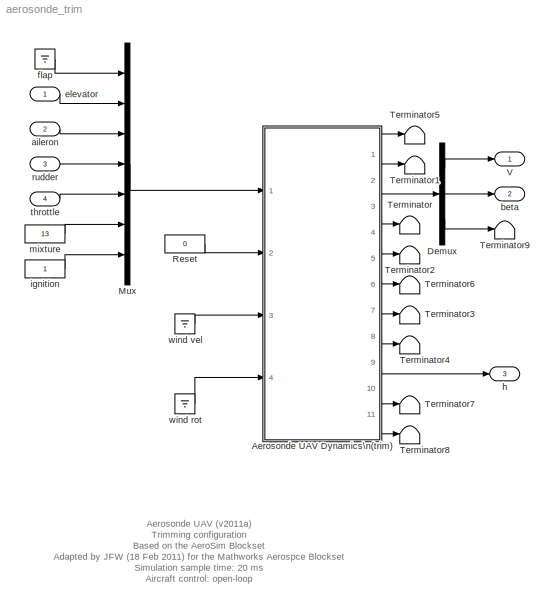
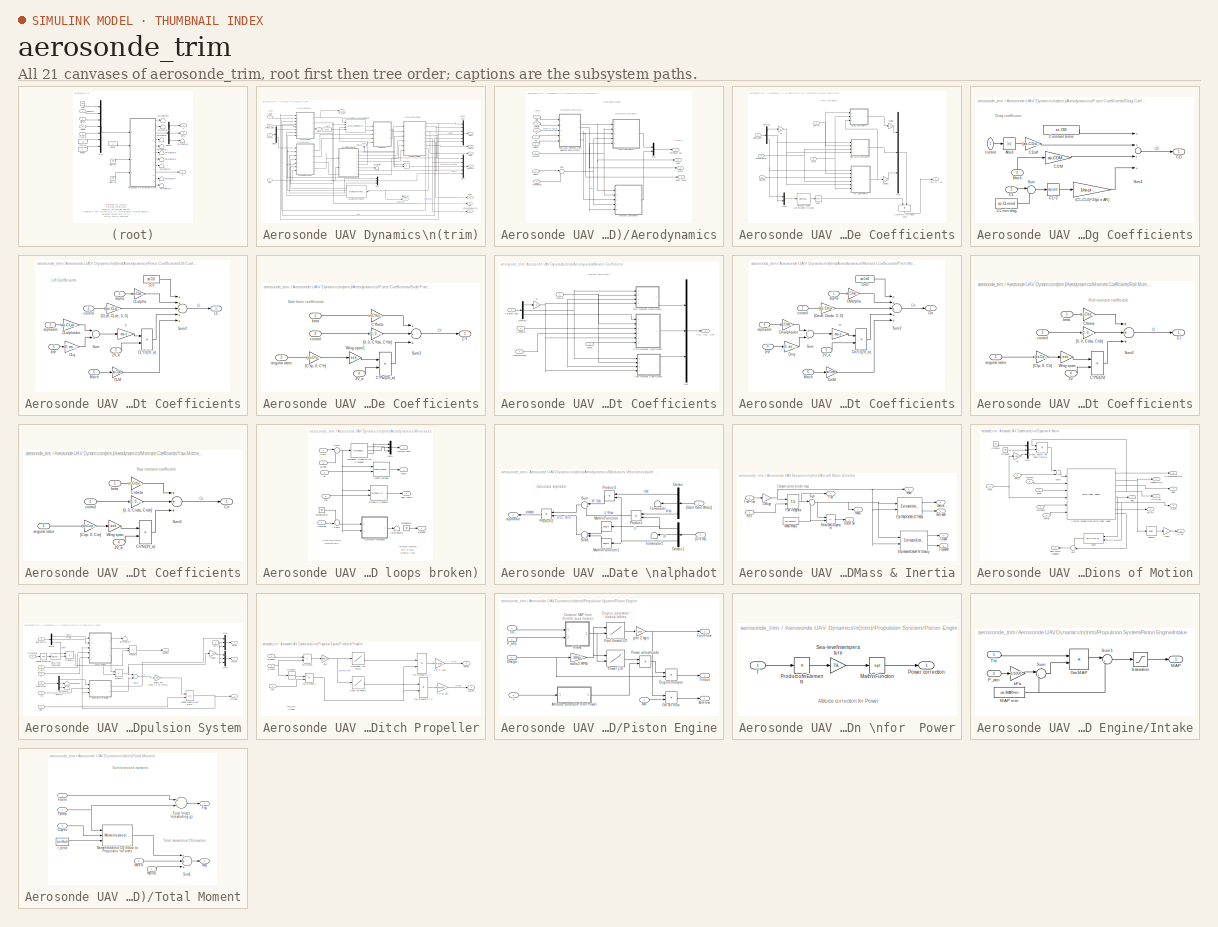
[diagram: thumbnail index - all 21 canvases of the model, root first then tree order]
MODEL aerosonde_trim
KIND model
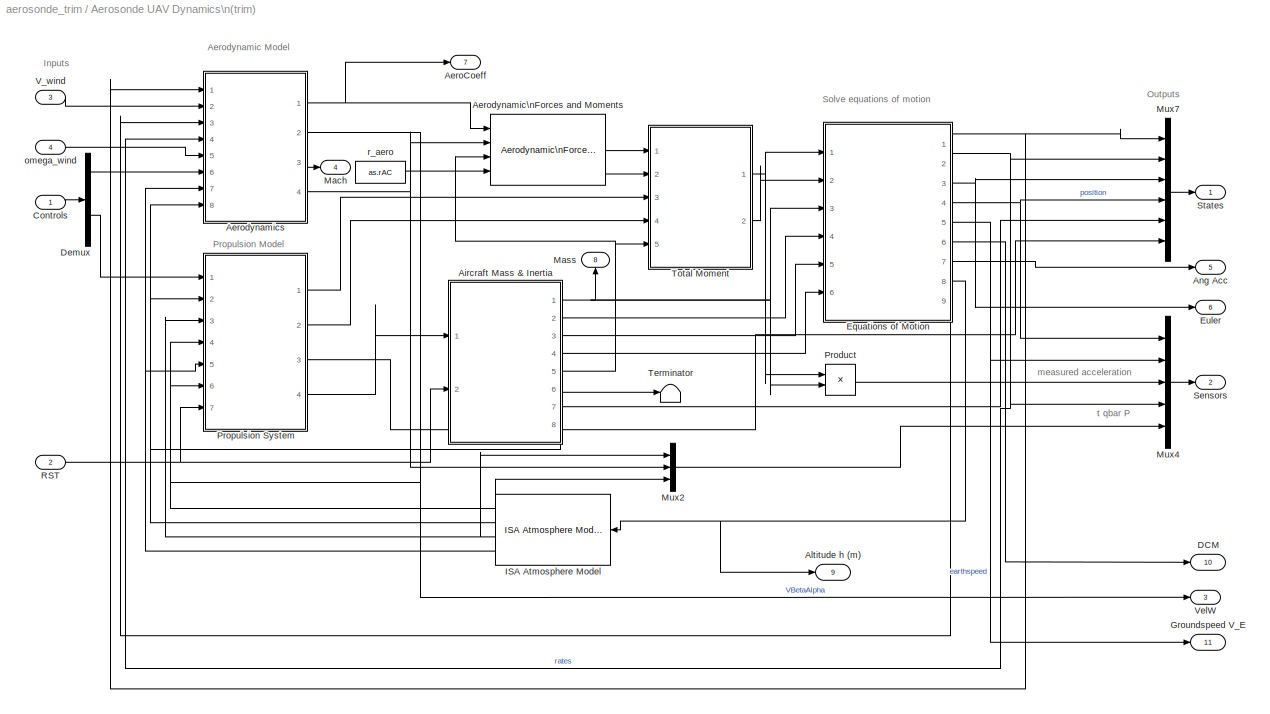
BLOCK [SubSystem] Aerosonde UAV Dynamics\n(trim)
  FunctionWithSeparateData = off
  MaskCallbackString = |||||||
  MaskDescription = Nonlinear 6-DOF Aerosonde  model with equations of motion in \nbody frame (trim).\n\nVersion 2011a (18 February 2011)\n\nNOTE: the algebraic loop has been removed and the rate set to zero\n      the wind rate has been set to zero
  MaskEnableString = on,on,on,on,on,on,on,on
  MaskHelp = The block implements the 6-DOF nonlinear Aerosonde model. It is an adaptation of the model provided in the AeroSim blockset. Velocities are computed in body frame.\n<P><B>Inputs:</B>\n<LI>Controls = the 4x1 vector of aircraft controls [elevator aileron rudder throttle]. Aerodynamic controls are in radians, throttle is from 0 to 1.</LI>\n<LI>RST = the integrator reset flag (0 or 1, all integrators ...<+1723ch>
  MaskHideContents = off
  MaskIconFrame = on
  MaskIconOpaque = on
  MaskIconRotate = none
  MaskIconUnits = autoscale
  MaskPortRotate = default
  MaskPromptString = Aircraft configuration data:|Initial velocity in body axes [u,v,w]: (m/s)|Initial body rotation rates [p,q,r]: (rad/s)|Initial Euler orientation [roll, pitch, yaw]: (rad)|Initial position in inertial axes [Xe,Ye,Ze]: (m)|Initial fuel mass: (Kg)|Initial engine speed: (rad/s)|Ground altitude: (m)
  MaskStyleString = edit,edit,edit,edit,edit,edit,edit,edit
  MaskToolTipString = on,on,on,on,on,on,on,on
  MaskTunableValueString = on,on,on,on,on,on,on,on
  MaskType = 6-DOF Aerosonde Model
  MaskValueString = aerosonde|velocity_ini|rates_ini|euler_ini|position_ini|fuel_ini|Omega_ini|0
  MaskVariables = as=@1;Velocities0=@2;Rates0=@3;Euler0=@4;Position0=@5;Fuel0=@6;Omega0=@7;GndAlt=@8;
  MaskVisibilityString = on,on,on,on,on,on,on,on
  MinAlgLoopOccurrences = off
  Opaque = off
  Ports = [4, 11]
  PropExecContextOutsideSubsystem = off
  RTWSystemCode = Auto
  RequestExecContextInheritance = off
  SID = 2
BLOCK [Outport] Aerosonde UAV Dynamics\n(trim)/AeroCoeff
  IconDisplay = Port number
  Port = 7
  SID = 315
BLOCK [Reference] Aerosonde UAV Dynamics\n(trim)/Aerodynamic\nForces and Moments  REF=aerolibadyn/Aerodynamic\nForces and Moments 
  FunctionWithSeparateData = off
  Ports = [4, 2]
  RTWMemSecDataConstants = Inherit from model
  RTWMemSecDataInternal = Inherit from model
  RTWMemSecDataParameters = Inherit from model
  RTWMemSecFuncExecute = Inherit from model
  RTWMemSecFuncInitTerm = Inherit from model
  S = as.S
  SID = 7
  ShowPortLabels = FromPortIcon
  SourceBlock = aerolibadyn/Aerodynamic\nForces and Moments
  SourceType = Aerodynamic Forces and Moments
  SystemSampleTime = -1
  b = as.b
  cbar = as.c
  inputAxes = Body
  outputForceAxes = Body
  outputMomentAxes = Body
BLOCK [SubSystem] Aerosonde UAV Dynamics\n(trim)/Aerodynamics
  FunctionWithSeparateData = off
  MaskHideContents = off
  MinAlgLoopOccurrences = off
  Opaque = off
  Ports = [8, 4]
  PropExecContextOutsideSubsystem = off
  RTWSystemCode = Auto
  RequestExecContextInheritance = off
  SID = 8
BLOCK [Outport] Aerosonde UAV Dynamics\n(trim)/Aerodynamics/AeroCoeff_ba
  IconDisplay = Port number
  SID = 163
BLOCK [Inport] Aerosonde UAV Dynamics\n(trim)/Aerodynamics/AeroCon
  IconDisplay = Port number
  Port = 6
  PortDimensions = [4 1]
  SID = 14
BLOCK [SubSystem] Aerosonde UAV Dynamics\n(trim)/Aerodynamics/Force Coefficients
  FunctionWithSeparateData = off
  MaskHideContents = off
  MinAlgLoopOccurrences = off
  Opaque = off
  Ports = [5, 1]
  PropExecContextOutsideSubsystem = off
  RTWSystemCode = Auto
  RequestExecContextInheritance = off
  SID = 17
BLOCK [Gain] Aerosonde UAV Dynamics\n(trim)/Aerodynamics/Force Coefficients/2c
  Gain = 2
  SID = 23
BLOCK [Inport] Aerosonde UAV Dynamics\n(trim)/Aerodynamics/Force Coefficients/AlphaDot
  IconDisplay = Port number
  Port = 3
  SID = 20
BLOCK [Inport] Aerosonde UAV Dynamics\n(trim)/Aerodynamics/Force Coefficients/AngularRates
  IconDisplay = Port number
  Port = 4
  PortDimensions = [3 1]
  SID = 21
BLOCK [Gain] Aerosonde UAV Dynamics\n(trim)/Aerodynamics/Force Coefficients/ChSign
  Gain = -1
  SID = 24
BLOCK [Gain] Aerosonde UAV Dynamics\n(trim)/Aerodynamics/Force Coefficients/ChSign1
  Gain = -1
  SID = 25
BLOCK [Inport] Aerosonde UAV Dynamics\n(trim)/Aerodynamics/Force Coefficients/Control
  IconDisplay = Port number
  Port = 2
  PortDimensions = [4 1]
  SID = 19
BLOCK [Math] Aerosonde UAV Dynamics\n(trim)/Aerodynamics/Force Coefficients/DCM'
  Operator = transpose
  Ports = [1, 1]
  SID = 26
BLOCK [Demux] Aerosonde UAV Dynamics\n(trim)/Aerodynamics/Force Coefficients/Demux2
  Outputs = 3
  Ports = [1, 3]
  SID = 27
BLOCK [Reference] Aerosonde UAV Dynamics\n(trim)/Aerodynamics/Force Coefficients/Direction Cosine Matrix\nBody to Wind  REF=aerolibtransform2/Direction Cosine Matrix\nBody to Wind
  FunctionWithSeparateData = off
  Ports = [1, 1]
  RTWMemSecDataConstants = Inherit from model
  RTWMemSecDataInternal = Inherit from model
  RTWMemSecDataParameters = Inherit from model
  RTWMemSecFuncExecute = Inherit from model
  RTWMemSecFuncInitTerm = Inherit from model
  SID = 28
  ShowPortLabels = none
  SourceBlock = aerolibtransform2/Direction Cosine Matrix\nBody to Wind
  SourceType = DCM Body to Wind
  SystemSampleTime = -1
BLOCK [SubSystem] Aerosonde UAV Dynamics\n(trim)/Aerodynamics/Force Coefficients/Drag Coefficients
  FunctionWithSeparateData = off
  MaskHideContents = off
  MinAlgLoopOccurrences = off
  Opaque = off
  Ports = [3, 1]
  PropExecContextOutsideSubsystem = off
  RTWSystemCode = Auto
  RequestExecContextInheritance = off
  SID = 29
BLOCK [Gain] Aerosonde UAV Dynamics\n(trim)/Aerodynamics/Force Coefficients/Drag Coefficients/(CL-CL0)^2//(pi e AR)
  Gain = 1/as.pieaR
  Multiplication = Matrix(K*u)
  SID = 33
BLOCK [Abs] Aerosonde UAV Dynamics\n(trim)/Aerodynamics/Force Coefficients/Drag Coefficients/Abs4
  SID = 34
BLOCK [Outport] Aerosonde UAV Dynamics\n(trim)/Aerodynamics/Force Coefficients/Drag Coefficients/CD
  IconDisplay = Port number
  SID = 42
BLOCK [Gain] Aerosonde UAV Dynamics\n(trim)/Aerodynamics/Force Coefficients/Drag Coefficients/CDM
  Gain = as.CDM
  SID = 35
BLOCK [Gain] Aerosonde UAV Dynamics\n(trim)/Aerodynamics/Force Coefficients/Drag Coefficients/CDdf
  Gain = [as.CDdf, as.CDde, as.CDda, as.CDdr]
  Multiplication = Matrix(K*u)
  SID = 36
BLOCK [Inport] Aerosonde UAV Dynamics\n(trim)/Aerodynamics/Force Coefficients/Drag Coefficients/CL
  IconDisplay = Port number
  Port = 3
  PortDimensions = 1
  SID = 32
BLOCK [Constant] Aerosonde UAV Dynamics\n(trim)/Aerodynamics/Force Coefficients/Drag Coefficients/CL min drag
  SID = 37
  Value = as.CLmind
BLOCK [Math] Aerosonde UAV Dynamics\n(trim)/Aerodynamics/Force Coefficients/Drag Coefficients/CL^2
  Operator = square
  Ports = [1, 1]
  SID = 38
BLOCK [Constant] Aerosonde UAV Dynamics\n(trim)/Aerodynamics/Force Coefficients/Drag Coefficients/Constant terms
  SID = 39
  Value = as.CD0
BLOCK [Inport] Aerosonde UAV Dynamics\n(trim)/Aerodynamics/Force Coefficients/Drag Coefficients/Mach
  IconDisplay = Port number
  Port = 2
  SID = 31
BLOCK [Sum] Aerosonde UAV Dynamics\n(trim)/Aerodynamics/Force Coefficients/Drag Coefficients/Sum
  IconShape = round
  Inputs = |+-
  Ports = [2, 1]
  SID = 40
BLOCK [Sum] Aerosonde UAV Dynamics\n(trim)/Aerodynamics/Force Coefficients/Drag Coefficients/Sum1
  Inputs = ++++
  Ports = [4, 1]
  SID = 41
BLOCK [Inport] Aerosonde UAV Dynamics\n(trim)/Aerodynamics/Force Coefficients/Drag Coefficients/control
  IconDisplay = Port number
  SID = 30
BLOCK [SubSystem] Aerosonde UAV Dynamics\n(trim)/Aerodynamics/Force Coefficients/Lift Coefficients
  FunctionWithSeparateData = off
  MaskHideContents = off
  MinAlgLoopOccurrences = off
  Opaque = off
  Ports = [6, 1]
  PropExecContextOutsideSubsystem = off
  RTWSystemCode = Auto
  RequestExecContextInheritance = off
  SID = 43
BLOCK [Inport] Aerosonde UAV Dynamics\n(trim)/Aerodynamics/Force Coefficients/Lift Coefficients/2V_a
  IconDisplay = Port number
  Port = 5
  SID = 48
BLOCK [Outport] Aerosonde UAV Dynamics\n(trim)/Aerodynamics/Force Coefficients/Lift Coefficients/CL
  IconDisplay = Port number
  SID = 60
BLOCK [Product] Aerosonde UAV Dynamics\n(trim)/Aerodynamics/Force Coefficients/Lift Coefficients/CL*c//(2V_a)
  Inputs = */
  Ports = [2, 1]
  RndMeth = Floor
  SID = 50
BLOCK [Constant] Aerosonde UAV Dynamics\n(trim)/Aerodynamics/Force Coefficients/Lift Coefficients/CL0
  SID = 51
  Value = as.CL0
BLOCK [Gain] Aerosonde UAV Dynamics\n(trim)/Aerodynamics/Force Coefficients/Lift Coefficients/CLM
  Gain = as.CLM
  SID = 52
BLOCK [Gain] Aerosonde UAV Dynamics\n(trim)/Aerodynamics/Force Coefficients/Lift Coefficients/CLalpha
  Gain = as.CLalpha
  SID = 53
BLOCK [Gain] Aerosonde UAV Dynamics\n(trim)/Aerodynamics/Force Coefficients/Lift Coefficients/CLalphadot
  Gain = as.CLalphadot
  Multiplication = Matrix(K*u)
  SID = 54
BLOCK [Gain] Aerosonde UAV Dynamics\n(trim)/Aerodynamics/Force Coefficients/Lift Coefficients/CLq
  Gain = [0, as.CLq, 0]
  Multiplication = Matrix(K*u)
  SID = 55
BLOCK [Inport] Aerosonde UAV Dynamics\n(trim)/Aerodynamics/Force Coefficients/Lift Coefficients/Mach
  IconDisplay = Port number
  Port = 6
  SID = 49
BLOCK [Sum] Aerosonde UAV Dynamics\n(trim)/Aerodynamics/Force Coefficients/Lift Coefficients/Sum
  Ports = [2, 1]
  SID = 56
BLOCK [Sum] Aerosonde UAV Dynamics\n(trim)/Aerodynamics/Force Coefficients/Lift Coefficients/Sum2
  Inputs = +++++
  Ports = [5, 1]
  SID = 57
BLOCK [Gain] Aerosonde UAV Dynamics\n(trim)/Aerodynamics/Force Coefficients/Lift Coefficients/[CLdf, CLde, 0, 0]
  Gain = [as.CLdf, as.CLde, 0, 0]
  Multiplication = Matrix(K*u)
  SID = 58
BLOCK [Inport] Aerosonde UAV Dynamics\n(trim)/Aerodynamics/Force Coefficients/Lift Coefficients/alpha
  IconDisplay = Port number
  SID = 44
BLOCK [Inport] Aerosonde UAV Dynamics\n(trim)/Aerodynamics/Force Coefficients/Lift Coefficients/alphadot
  IconDisplay = Port number
  Port = 3
  SID = 46
BLOCK [Gain] Aerosonde UAV Dynamics\n(trim)/Aerodynamics/Force Coefficients/Lift Coefficients/c
  Gain = as.c
  SID = 59
BLOCK [Inport] Aerosonde UAV Dynamics\n(trim)/Aerodynamics/Force Coefficients/Lift Coefficients/control
  IconDisplay = Port number
  Port = 2
  SID = 45
BLOCK [Inport] Aerosonde UAV Dynamics\n(trim)/Aerodynamics/Force Coefficients/Lift Coefficients/pqr
  IconDisplay = Port number
  Port = 4
  SID = 47
BLOCK [Inport] Aerosonde UAV Dynamics\n(trim)/Aerodynamics/Force Coefficients/Mach
  IconDisplay = Port number
  Port = 5
  PortDimensions = 1
  SID = 22
BLOCK [Mux] Aerosonde UAV Dynamics\n(trim)/Aerodynamics/Force Coefficients/Mux
  DisplayOption = bar
  Inputs = 3
  Ports = [3, 1]
  SID = 61
BLOCK [Mux] Aerosonde UAV Dynamics\n(trim)/Aerodynamics/Force Coefficients/Mux1
  DisplayOption = bar
  Inputs = 2
  Ports = [2, 1]
  SID = 62
BLOCK [SubSystem] Aerosonde UAV Dynamics\n(trim)/Aerodynamics/Force Coefficients/Side Force Coefficients
  FunctionWithSeparateData = off
  MaskHideContents = off
  MinAlgLoopOccurrences = off
  Opaque = off
  Ports = [4, 1]
  PropExecContextOutsideSubsystem = off
  RTWSystemCode = Auto
  RequestExecContextInheritance = off
  SID = 63
BLOCK [Inport] Aerosonde UAV Dynamics\n(trim)/Aerodynamics/Force Coefficients/Side Force Coefficients/2V_a
  IconDisplay = Port number
  Port = 4
  SID = 67
BLOCK [Outport] Aerosonde UAV Dynamics\n(trim)/Aerodynamics/Force Coefficients/Side Force Coefficients/CY
  IconDisplay = Port number
  SID = 74
BLOCK [Product] Aerosonde UAV Dynamics\n(trim)/Aerodynamics/Force Coefficients/Side Force Coefficients/CY*b//(2V_a)
  Inputs = */
  Ports = [2, 1]
  RndMeth = Floor
  SID = 68
BLOCK [Gain] Aerosonde UAV Dynamics\n(trim)/Aerodynamics/Force Coefficients/Side Force Coefficients/CYbeta
  Gain = as.CYbeta
  SID = 69
BLOCK [Sum] Aerosonde UAV Dynamics\n(trim)/Aerodynamics/Force Coefficients/Side Force Coefficients/Sum3
  Inputs = +++
  Ports = [3, 1]
  SID = 70
BLOCK [Gain] Aerosonde UAV Dynamics\n(trim)/Aerodynamics/Force Coefficients/Side Force Coefficients/Wing span1
  Gain = as.b
  SID = 71
BLOCK [Gain] Aerosonde UAV Dynamics\n(trim)/Aerodynamics/Force Coefficients/Side Force Coefficients/[0, 0, CYda, CYdr]
  Gain = [0, 0, as.CYda, as.CYdr]
  Multiplication = Matrix(K*u)
  SID = 72
BLOCK [Gain] Aerosonde UAV Dynamics\n(trim)/Aerodynamics/Force Coefficients/Side Force Coefficients/[CYp, 0, CYr]
  Gain = [as.CYp, 0, as.CYr]
  Multiplication = Matrix(K*u)
  SID = 73
BLOCK [Inport] Aerosonde UAV Dynamics\n(trim)/Aerodynamics/Force Coefficients/Side Force Coefficients/angular rates
  IconDisplay = Port number
  Port = 3
  SID = 66
BLOCK [Inport] Aerosonde UAV Dynamics\n(trim)/Aerodynamics/Force Coefficients/Side Force Coefficients/beta
  IconDisplay = Port number
  SID = 64
BLOCK [Inport] Aerosonde UAV Dynamics\n(trim)/Aerodynamics/Force Coefficients/Side Force Coefficients/control
  IconDisplay = Port number
  Port = 2
  SID = 65
BLOCK [Inport] Aerosonde UAV Dynamics\n(trim)/Aerodynamics/Force Coefficients/VBetaAlpha
  IconDisplay = Port number
  PortDimensions = [3 1]
  SID = 18
BLOCK [Outport] Aerosonde UAV Dynamics\n(trim)/Aerodynamics/Force Coefficients/[-CD, CY, -CL]
  IconDisplay = Port number
  SID = 76
BLOCK [Product] Aerosonde UAV Dynamics\n(trim)/Aerodynamics/Force Coefficients/transform to \nbody axes
  Inputs = **
  Multiplication = Matrix(*)
  Ports = [2, 1]
  RndMeth = Floor
  SID = 75
BLOCK [Outport] Aerosonde UAV Dynamics\n(trim)/Aerodynamics/Mach
  IconDisplay = Port number
  Port = 3
  SID = 165
BLOCK [SubSystem] Aerosonde UAV Dynamics\n(trim)/Aerodynamics/Moment Coefficients
  FunctionWithSeparateData = off
  MaskHideContents = off
  MinAlgLoopOccurrences = off
  Opaque = off
  Ports = [5, 1]
  PropExecContextOutsideSubsystem = off
  RTWSystemCode = Auto
  RequestExecContextInheritance = off
  SID = 77
BLOCK [Gain] Aerosonde UAV Dynamics\n(trim)/Aerodynamics/Moment Coefficients/2c
  Gain = 2
  SID = 83
BLOCK [Inport] Aerosonde UAV Dynamics\n(trim)/Aerodynamics/Moment Coefficients/AlphaDot
  IconDisplay = Port number
  Port = 3
  SID = 80
BLOCK [Inport] Aerosonde UAV Dynamics\n(trim)/Aerodynamics/Moment Coefficients/AngularRates
  IconDisplay = Port number
  Port = 4
  PortDimensions = [3 1]
  SID = 81
BLOCK [Inport] Aerosonde UAV Dynamics\n(trim)/Aerodynamics/Moment Coefficients/Control
  IconDisplay = Port number
  Port = 2
  PortDimensions = [4 1]
  SID = 79
BLOCK [Demux] Aerosonde UAV Dynamics\n(trim)/Aerodynamics/Moment Coefficients/Demux1
  Outputs = 3
  Ports = [1, 3]
  SID = 84
BLOCK [Inport] Aerosonde UAV Dynamics\n(trim)/Aerodynamics/Moment Coefficients/Mach
  IconDisplay = Port number
  Port = 5
  PortDimensions = 1
  SID = 82
BLOCK [Mux] Aerosonde UAV Dynamics\n(trim)/Aerodynamics/Moment Coefficients/Mux
  DisplayOption = bar
  Inputs = 3
  Ports = [3, 1]
  SID = 85
BLOCK [SubSystem] Aerosonde UAV Dynamics\n(trim)/Aerodynamics/Moment Coefficients/Pitch Moment Coefficients
  FunctionWithSeparateData = off
  MaskHideContents = off
  MinAlgLoopOccurrences = off
  Opaque = off
  Ports = [6, 1]
  PropExecContextOutsideSubsystem = off
  RTWSystemCode = Auto
  RequestExecContextInheritance = off
  SID = 86
BLOCK [Inport] Aerosonde UAV Dynamics\n(trim)/Aerodynamics/Moment Coefficients/Pitch Moment Coefficients/2V_a
  IconDisplay = Port number
  Port = 5
  SID = 91
BLOCK [Gain] Aerosonde UAV Dynamics\n(trim)/Aerodynamics/Moment Coefficients/Pitch Moment Coefficients/CMalpha
  Gain = as.Cmalpha
  SID = 93
BLOCK [Outport] Aerosonde UAV Dynamics\n(trim)/Aerodynamics/Moment Coefficients/Pitch Moment Coefficients/Cm
  IconDisplay = Port number
  SID = 103
BLOCK [Product] Aerosonde UAV Dynamics\n(trim)/Aerodynamics/Moment Coefficients/Pitch Moment Coefficients/Cm*c//(2V_a)
  Inputs = */
  Ports = [2, 1]
  RndMeth = Floor
  SID = 94
BLOCK [Constant] Aerosonde UAV Dynamics\n(trim)/Aerodynamics/Moment Coefficients/Pitch Moment Coefficients/Cm0
  SID = 95
  Value = as.Cm0
BLOCK [Gain] Aerosonde UAV Dynamics\n(trim)/Aerodynamics/Moment Coefficients/Pitch Moment Coefficients/CmM
  Gain = as.CmM
  SID = 96
BLOCK [Gain] Aerosonde UAV Dynamics\n(trim)/Aerodynamics/Moment Coefficients/Pitch Moment Coefficients/Cmalphadot
  Gain = as.Cmalphadot
  Multiplication = Matrix(K*u)
  SID = 97
BLOCK [Gain] Aerosonde UAV Dynamics\n(trim)/Aerodynamics/Moment Coefficients/Pitch Moment Coefficients/Cmq
  Gain = [0, as.Cmq, 0]
  Multiplication = Matrix(K*u)
  SID = 98
BLOCK [Inport] Aerosonde UAV Dynamics\n(trim)/Aerodynamics/Moment Coefficients/Pitch Moment Coefficients/Mach
  IconDisplay = Port number
  Port = 6
  SID = 92
BLOCK [Sum] Aerosonde UAV Dynamics\n(trim)/Aerodynamics/Moment Coefficients/Pitch Moment Coefficients/Sum
  Ports = [2, 1]
  SID = 99
BLOCK [Sum] Aerosonde UAV Dynamics\n(trim)/Aerodynamics/Moment Coefficients/Pitch Moment Coefficients/Sum2
  Inputs = +++++
  Ports = [5, 1]
  SID = 100
BLOCK [Gain] Aerosonde UAV Dynamics\n(trim)/Aerodynamics/Moment Coefficients/Pitch Moment Coefficients/[Cmdf, Cmde, 0, 0]
  Gain = [as.Cmdf, as.Cmde, 0, 0]
  Multiplication = Matrix(K*u)
  SID = 101
BLOCK [Inport] Aerosonde UAV Dynamics\n(trim)/Aerodynamics/Moment Coefficients/Pitch Moment Coefficients/alpha
  IconDisplay = Port number
  SID = 87
BLOCK [Inport] Aerosonde UAV Dynamics\n(trim)/Aerodynamics/Moment Coefficients/Pitch Moment Coefficients/alphadot
  IconDisplay = Port number
  Port = 3
  SID = 89
BLOCK [Gain] Aerosonde UAV Dynamics\n(trim)/Aerodynamics/Moment Coefficients/Pitch Moment Coefficients/c
  Gain = as.c
  SID = 102
BLOCK [Inport] Aerosonde UAV Dynamics\n(trim)/Aerodynamics/Moment Coefficients/Pitch Moment Coefficients/control
  IconDisplay = Port number
  Port = 2
  SID = 88
BLOCK [Inport] Aerosonde UAV Dynamics\n(trim)/Aerodynamics/Moment Coefficients/Pitch Moment Coefficients/pqr
  IconDisplay = Port number
  Port = 4
  SID = 90
BLOCK [SubSystem] Aerosonde UAV Dynamics\n(trim)/Aerodynamics/Moment Coefficients/Roll Moment Coefficients
  FunctionWithSeparateData = off
  MaskHideContents = off
  MinAlgLoopOccurrences = off
  Opaque = off
  Ports = [4, 1]
  PropExecContextOutsideSubsystem = off
  RTWSystemCode = Auto
  RequestExecContextInheritance = off
  SID = 104
BLOCK [Inport] Aerosonde UAV Dynamics\n(trim)/Aerodynamics/Moment Coefficients/Roll Moment Coefficients/2V
  IconDisplay = Port number
  Port = 4
  SID = 108
BLOCK [Product] Aerosonde UAV Dynamics\n(trim)/Aerodynamics/Moment Coefficients/Roll Moment Coefficients/CY*b//(2V)
  Inputs = */
  Ports = [2, 1]
  RndMeth = Floor
  SID = 109
BLOCK [Outport] Aerosonde UAV Dynamics\n(trim)/Aerodynamics/Moment Coefficients/Roll Moment Coefficients/Cl
  IconDisplay = Port number
  SID = 115
BLOCK [Gain] Aerosonde UAV Dynamics\n(trim)/Aerodynamics/Moment Coefficients/Roll Moment Coefficients/Clbeta
  Gain = as.Clbeta
  SID = 110
BLOCK [Sum] Aerosonde UAV Dynamics\n(trim)/Aerodynamics/Moment Coefficients/Roll Moment Coefficients/Sum3
  Inputs = +++
  Ports = [3, 1]
  SID = 111
BLOCK [Gain] Aerosonde UAV Dynamics\n(trim)/Aerodynamics/Moment Coefficients/Roll Moment Coefficients/Wing span
  Gain = as.b
  SID = 112
BLOCK [Gain] Aerosonde UAV Dynamics\n(trim)/Aerodynamics/Moment Coefficients/Roll Moment Coefficients/[0, 0, Clda, Cldr]
  Gain = [0, 0, as.Clda, as.Cldr]
  Multiplication = Matrix(K*u)
  SID = 113
BLOCK [Gain] Aerosonde UAV Dynamics\n(trim)/Aerodynamics/Moment Coefficients/Roll Moment Coefficients/[Clp, 0, Clr]
  Gain = [as.Clp, 0, as.Clr]
  Multiplication = Matrix(K*u)
  SID = 114
BLOCK [Inport] Aerosonde UAV Dynamics\n(trim)/Aerodynamics/Moment Coefficients/Roll Moment Coefficients/angular rates
  IconDisplay = Port number
  Port = 3
  SID = 107
BLOCK [Inport] Aerosonde UAV Dynamics\n(trim)/Aerodynamics/Moment Coefficients/Roll Moment Coefficients/beta
  IconDisplay = Port number
  SID = 105
BLOCK [Inport] Aerosonde UAV Dynamics\n(trim)/Aerodynamics/Moment Coefficients/Roll Moment Coefficients/control
  IconDisplay = Port number
  Port = 2
  SID = 106
BLOCK [Inport] Aerosonde UAV Dynamics\n(trim)/Aerodynamics/Moment Coefficients/VBetaAlpha
  IconDisplay = Port number
  PortDimensions = [3 1]
  SID = 78
BLOCK [SubSystem] Aerosonde UAV Dynamics\n(trim)/Aerodynamics/Moment Coefficients/Yaw Moment Coefficients
  FunctionWithSeparateData = off
  MaskHideContents = off
  MinAlgLoopOccurrences = off
  Opaque = off
  Ports = [4, 1]
  PropExecContextOutsideSubsystem = off
  RTWSystemCode = Auto
  RequestExecContextInheritance = off
  SID = 116
BLOCK [Inport] Aerosonde UAV Dynamics\n(trim)/Aerodynamics/Moment Coefficients/Yaw Moment Coefficients/2V_a
  IconDisplay = Port number
  Port = 4
  SID = 120
BLOCK [Outport] Aerosonde UAV Dynamics\n(trim)/Aerodynamics/Moment Coefficients/Yaw Moment Coefficients/Cn
  IconDisplay = Port number
  SID = 127
BLOCK [Product] Aerosonde UAV Dynamics\n(trim)/Aerodynamics/Moment Coefficients/Yaw Moment Coefficients/Cn*b//(2V_a)
  Inputs = */
  Ports = [2, 1]
  RndMeth = Floor
  SID = 121
BLOCK [Gain] Aerosonde UAV Dynamics\n(trim)/Aerodynamics/Moment Coefficients/Yaw Moment Coefficients/Cnbeta
  Gain = as.Cnbeta
  SID = 122
BLOCK [Sum] Aerosonde UAV Dynamics\n(trim)/Aerodynamics/Moment Coefficients/Yaw Moment Coefficients/Sum3
  Inputs = +++
  Ports = [3, 1]
  SID = 123
BLOCK [Gain] Aerosonde UAV Dynamics\n(trim)/Aerodynamics/Moment Coefficients/Yaw Moment Coefficients/Wing span
  Gain = as.b
  SID = 124
BLOCK [Gain] Aerosonde UAV Dynamics\n(trim)/Aerodynamics/Moment Coefficients/Yaw Moment Coefficients/[0, 0, Cnda, Cndr]
  Gain = [0, 0, as.Cnda, as.Cndr]
  Multiplication = Matrix(K*u)
  SID = 125
BLOCK [Gain] Aerosonde UAV Dynamics\n(trim)/Aerodynamics/Moment Coefficients/Yaw Moment Coefficients/[Cnp, 0, Cnr]
  Gain = [as.Cnp, 0, as.Cnr]
  Multiplication = Matrix(K*u)
  SID = 126
BLOCK [Inport] Aerosonde UAV Dynamics\n(trim)/Aerodynamics/Moment Coefficients/Yaw Moment Coefficients/angular rates
  IconDisplay = Port number
  Port = 3
  SID = 119
BLOCK [Inport] Aerosonde UAV Dynamics\n(trim)/Aerodynamics/Moment Coefficients/Yaw Moment Coefficients/beta
  IconDisplay = Port number
  SID = 117
BLOCK [Inport] Aerosonde UAV Dynamics\n(trim)/Aerodynamics/Moment Coefficients/Yaw Moment Coefficients/control
  IconDisplay = Port number
  Port = 2
  SID = 118
BLOCK [Outport] Aerosonde UAV Dynamics\n(trim)/Aerodynamics/Moment Coefficients/[-Cl, Cm, -Cn]
  IconDisplay = Port number
  SID = 128
BLOCK [Mux] Aerosonde UAV Dynamics\n(trim)/Aerodynamics/Mux
  DisplayOption = bar
  Inputs = 2
  Ports = [2, 1]
  SID = 129
BLOCK [Inport] Aerosonde UAV Dynamics\n(trim)/Aerodynamics/Rates
  IconDisplay = Port number
  Port = 4
  PortDimensions = [3 1]
  SID = 12
BLOCK [Sum] Aerosonde UAV Dynamics\n(trim)/Aerodynamics/Sum
  IconShape = round
  Inputs = |+-
  Ports = [2, 1]
  SID = 130
BLOCK [Inport] Aerosonde UAV Dynamics\n(trim)/Aerodynamics/VelB
  IconDisplay = Port number
  PortDimensions = [3 1]
  SID = 9
BLOCK [Inport] Aerosonde UAV Dynamics\n(trim)/Aerodynamics/VelBdot
  IconDisplay = Port number
  Port = 3
  SID = 11
BLOCK [Outport] Aerosonde UAV Dynamics\n(trim)/Aerodynamics/VelW
  IconDisplay = Port number
  Port = 2
  SID = 164
BLOCK [SubSystem] Aerosonde UAV Dynamics\n(trim)/Aerodynamics/Wind-axes Velocities\n(with algebraic loops broken)
  FunctionWithSeparateData = off
  MaskHideContents = off
  MinAlgLoopOccurrences = off
  Opaque = off
  Ports = [5, 4]
  PropExecContextOutsideSubsystem = off
  RTWSystemCode = Auto
  RequestExecContextInheritance = off
  SID = 131
BLOCK [SubSystem] Aerosonde UAV Dynamics\n(trim)/Aerodynamics/Wind-axes Velocities\n(with algebraic loops broken)/Calculate \nalphadot
  FunctionWithSeparateData = off
  MaskHideContents = off
  MinAlgLoopOccurrences = off
  Opaque = off
  Ports = [2, 1]
  PropExecContextOutsideSubsystem = off
  RTWSystemCode = Auto
  RequestExecContextInheritance = off
  SID = 137
BLOCK [Demux] Aerosonde UAV Dynamics\n(trim)/Aerodynamics/Wind-axes Velocities\n(with algebraic loops broken)/Calculate \nalphadot/Demux
  DisplayOption = bar
  Outputs = 3
  Ports = [1, 3]
  SID = 140
BLOCK [Demux] Aerosonde UAV Dynamics\n(trim)/Aerodynamics/Wind-axes Velocities\n(with algebraic loops broken)/Calculate \nalphadot/Demux1
  DisplayOption = bar
  Outputs = 3
  Ports = [1, 3]
  SID = 141
BLOCK [Math] Aerosonde UAV Dynamics\n(trim)/Aerodynamics/Wind-axes Velocities\n(with algebraic loops broken)/Calculate \nalphadot/Math\nFunction
  Operator = square
  Ports = [1, 1]
  SID = 142
BLOCK [Math] Aerosonde UAV Dynamics\n(trim)/Aerodynamics/Wind-axes Velocities\n(with algebraic loops broken)/Calculate \nalphadot/Math\nFunction1
  Operator = square
  Ports = [1, 1]
  SID = 143
BLOCK [Product] Aerosonde UAV Dynamics\n(trim)/Aerodynamics/Wind-axes Velocities\n(with algebraic loops broken)/Calculate \nalphadot/Product
  InputSameDT = off
  OutDataTypeMode = Inherit via internal rule
  OutDataTypeStr = Inherit: Inherit via internal rule
  Ports = [2, 1]
  SID = 144
  SaturateOnIntegerOverflow = off
BLOCK [Product] Aerosonde UAV Dynamics\n(trim)/Aerodynamics/Wind-axes Velocities\n(with algebraic loops broken)/Calculate \nalphadot/Product1
  InputSameDT = off
  OutDataTypeMode = Inherit via internal rule
  OutDataTypeStr = Inherit: Inherit via internal rule
  Ports = [2, 1]
  SID = 145
  SaturateOnIntegerOverflow = off
BLOCK [Product] Aerosonde UAV Dynamics\n(trim)/Aerodynamics/Wind-axes Velocities\n(with algebraic loops broken)/Calculate \nalphadot/Product2
  InputSameDT = off
  Inputs = */
  OutDataTypeMode = Inherit via internal rule
  OutDataTypeStr = Inherit: Inherit via internal rule
  Ports = [2, 1]
  SID = 146
  SaturateOnIntegerOverflow = off
BLOCK [Sum] Aerosonde UAV Dynamics\n(trim)/Aerodynamics/Wind-axes Velocities\n(with algebraic loops broken)/Calculate \nalphadot/Sum
  IconShape = round
  InputSameDT = off
  Inputs = -|+
  OutDataTypeMode = Inherit via internal rule
  OutDataTypeStr = Inherit: Inherit via internal rule
  Ports = [2, 1]
  SID = 147
  SaturateOnIntegerOverflow = off
BLOCK [Sum] Aerosonde UAV Dynamics\n(trim)/Aerodynamics/Wind-axes Velocities\n(with algebraic loops broken)/Calculate \nalphadot/Sum1
  IconShape = round
  InputSameDT = off
  Inputs = +|+
  OutDataTypeMode = Inherit via internal rule
  OutDataTypeStr = Inherit: Inherit via internal rule
  Ports = [2, 1]
  SID = 148
  SaturateOnIntegerOverflow = off
BLOCK [Terminator] Aerosonde UAV Dynamics\n(trim)/Aerodynamics/Wind-axes Velocities\n(with algebraic loops broken)/Calculate \nalphadot/Terminator
  SID = 149
BLOCK [Terminator] Aerosonde UAV Dynamics\n(trim)/Aerodynamics/Wind-axes Velocities\n(with algebraic loops broken)/Calculate \nalphadot/Terminator1
  SID = 150
BLOCK [Inport] Aerosonde UAV Dynamics\n(trim)/Aerodynamics/Wind-axes Velocities\n(with algebraic loops broken)/Calculate \nalphadot/[U V W]
  IconDisplay = Port number
  Port = 2
  SID = 139
BLOCK [Inport] Aerosonde UAV Dynamics\n(trim)/Aerodynamics/Wind-axes Velocities\n(with algebraic loops broken)/Calculate \nalphadot/[Udot Vdot Wdot]
  IconDisplay = Port number
  SID = 138
BLOCK [Outport] Aerosonde UAV Dynamics\n(trim)/Aerodynamics/Wind-axes Velocities\n(with algebraic loops broken)/Calculate \nalphadot/alphadot
  IconDisplay = Port number
  SID = 151
BLOCK [Reference] Aerosonde UAV Dynamics\n(trim)/Aerodynamics/Wind-axes Velocities\n(with algebraic loops broken)/Dynamic Pressure  REF=aerolibasang/Dynamic Pressure
  FunctionWithSeparateData = off
  Ports = [2, 1]
  RTWMemSecDataConstants = Inherit from model
  RTWMemSecDataInternal = Inherit from model
  RTWMemSecDataParameters = Inherit from model
  RTWMemSecFuncExecute = Inherit from model
  RTWMemSecFuncInitTerm = Inherit from model
  SID = 153
  ShowPortLabels = FromPortIcon
  SourceBlock = aerolibasang/Dynamic Pressure
  SourceType = Dynamic Pressure
  SystemSampleTime = -1
BLOCK [Reference] Aerosonde UAV Dynamics\n(trim)/Aerodynamics/Wind-axes Velocities\n(with algebraic loops broken)/Incidence, Sideslip,\n& Airspeed  REF=aerolibasang/Incidence, Sideslip,\n& Airspeed
  FunctionWithSeparateData = off
  Ports = [1, 3]
  RTWMemSecDataConstants = Inherit from model
  RTWMemSecDataInternal = Inherit from model
  RTWMemSecDataParameters = Inherit from model
  RTWMemSecFuncExecute = Inherit from model
  RTWMemSecFuncInitTerm = Inherit from model
  SID = 154
  ShowPortLabels = FromPortIcon
  SourceBlock = aerolibasang/Incidence, Sideslip,\n& Airspeed
  SourceType = Incidence,Sideslip,&Airspeed
  SystemSampleTime = -1
BLOCK [Outport] Aerosonde UAV Dynamics\n(trim)/Aerodynamics/Wind-axes Velocities\n(with algebraic loops broken)/Mach
  IconDisplay = Port number
  Port = 2
  SID = 160
BLOCK [Reference] Aerosonde UAV Dynamics\n(trim)/Aerodynamics/Wind-axes Velocities\n(with algebraic loops broken)/Mach Number  REF=aerolibasang/Mach Number
  FunctionWithSeparateData = off
  Ports = [2, 1]
  RTWMemSecDataConstants = Inherit from model
  RTWMemSecDataInternal = Inherit from model
  RTWMemSecDataParameters = Inherit from model
  RTWMemSecFuncExecute = Inherit from model
  RTWMemSecFuncInitTerm = Inherit from model
  SID = 155
  ShowPortLabels = FromPortIcon
  SourceBlock = aerolibasang/Mach Number
  SourceType = Mach Number
  SystemSampleTime = -1
BLOCK [Mux] Aerosonde UAV Dynamics\n(trim)/Aerodynamics/Wind-axes Velocities\n(with algebraic loops broken)/Mux1
  DisplayOption = bar
  Inputs = 3
  Ports = [3, 1]
  SID = 156
BLOCK [Sum] Aerosonde UAV Dynamics\n(trim)/Aerodynamics/Wind-axes Velocities\n(with algebraic loops broken)/Sum1
  IconShape = round
  Inputs = |+-
  Ports = [2, 1]
  SID = 157
BLOCK [Sum] Aerosonde UAV Dynamics\n(trim)/Aerodynamics/Wind-axes Velocities\n(with algebraic loops broken)/Sum2
  IconShape = round
  Inputs = -+|
  Ports = [2, 1]
  SID = 158
BLOCK [Terminator] Aerosonde UAV Dynamics\n(trim)/Aerodynamics/Wind-axes Velocities\n(with algebraic loops broken)/Terminator3
  SID = 375
BLOCK [Outport] Aerosonde UAV Dynamics\n(trim)/Aerodynamics/Wind-axes Velocities\n(with algebraic loops broken)/VBetaAlpha
  IconDisplay = Port number
  SID = 159
BLOCK [Inport] Aerosonde UAV Dynamics\n(trim)/Aerodynamics/Wind-axes Velocities\n(with algebraic loops broken)/VelB
  IconDisplay = Port number
  SID = 132
BLOCK [Inport] Aerosonde UAV Dynamics\n(trim)/Aerodynamics/Wind-axes Velocities\n(with algebraic loops broken)/VelBdot
  IconDisplay = Port number
  Port = 5
  SID = 136
BLOCK [Inport] Aerosonde UAV Dynamics\n(trim)/Aerodynamics/Wind-axes Velocities\n(with algebraic loops broken)/WindB
  IconDisplay = Port number
  Port = 2
  SID = 133
BLOCK [Ground] Aerosonde UAV Dynamics\n(trim)/Aerodynamics/Wind-axes Velocities\n(with algebraic loops broken)/WindBdot=0
  SID = 374
BLOCK [Inport] Aerosonde UAV Dynamics\n(trim)/Aerodynamics/Wind-axes Velocities\n(with algebraic loops broken)/a
  IconDisplay = Port number
  Port = 3
  SID = 134
BLOCK [Outport] Aerosonde UAV Dynamics\n(trim)/Aerodynamics/Wind-axes Velocities\n(with algebraic loops broken)/alphadot
  IconDisplay = Port number
  Port = 4
  SID = 162
BLOCK [Ground] Aerosonde UAV Dynamics\n(trim)/Aerodynamics/Wind-axes Velocities\n(with algebraic loops broken)/alphadot=0
  SID = 376
BLOCK [Outport] Aerosonde UAV Dynamics\n(trim)/Aerodynamics/Wind-axes Velocities\n(with algebraic loops broken)/qbar (pdyn)
  IconDisplay = Port number
  Port = 3
  SID = 161
BLOCK [Inport] Aerosonde UAV Dynamics\n(trim)/Aerodynamics/Wind-axes Velocities\n(with algebraic loops broken)/rho
  IconDisplay = Port number
  Port = 4
  SID = 135
BLOCK [Inport] Aerosonde UAV Dynamics\n(trim)/Aerodynamics/WindB
  IconDisplay = Port number
  Port = 2
  PortDimensions = [3 1]
  SID = 10
BLOCK [Inport] Aerosonde UAV Dynamics\n(trim)/Aerodynamics/WindRates
  IconDisplay = Port number
  Port = 5
  PortDimensions = [3 1]
  SID = 13
BLOCK [Inport] Aerosonde UAV Dynamics\n(trim)/Aerodynamics/a 
  IconDisplay = Port number
  Port = 8
  PortDimensions = 1
  SID = 16
BLOCK [Outport] Aerosonde UAV Dynamics\n(trim)/Aerodynamics/qbar (pdyn)
  IconDisplay = Port number
  Port = 4
  SID = 166
BLOCK [Inport] Aerosonde UAV Dynamics\n(trim)/Aerodynamics/rho
  IconDisplay = Port number
  Port = 7
  PortDimensions = 1
  SID = 15
BLOCK [SubSystem] Aerosonde UAV Dynamics\n(trim)/Aircraft Mass & Inertia
  FunctionWithSeparateData = off
  MaskHideContents = off
  MinAlgLoopOccurrences = off
  Opaque = off
  Ports = [2, 8]
  PropExecContextOutsideSubsystem = off
  RTWSystemCode = Auto
  RequestExecContextInheritance = off
  SID = 167
BLOCK [Outport] Aerosonde UAV Dynamics\n(trim)/Aircraft Mass & Inertia/CGpos
  IconDisplay = Port number
  Port = 5
  SID = 181
BLOCK [Outport] Aerosonde UAV Dynamics\n(trim)/Aircraft Mass & Inertia/CGposdot
  IconDisplay = Port number
  Port = 6
  SID = 182
BLOCK [Gain] Aerosonde UAV Dynamics\n(trim)/Aircraft Mass & Inertia/ChSign
  Gain = -1
  SID = 170
BLOCK [Reference] Aerosonde UAV Dynamics\n(trim)/Aircraft Mass & Inertia/Estimate\nCenter of Gravity  REF=aerolibbdyn/Estimate\nCenter of Gravity
  FunctionWithSeparateData = off
  Ports = [2, 2]
  RTWMemSecDataConstants = Inherit from model
  RTWMemSecDataInternal = Inherit from model
  RTWMemSecDataParameters = Inherit from model
  RTWMemSecFuncExecute = Inherit from model
  RTWMemSecFuncInitTerm = Inherit from model
  SID = 171
  ShowPortLabels = FromPortIcon
  SourceBlock = aerolibbdyn/Estimate\nCenter of Gravity
  SourceType = Estimate Center of Gravity
  SystemSampleTime = -1
  ecg = as.CGempty
  emass = as.mempty
  fcg = as.CGgross
  fmass = as.mgross
BLOCK [Reference] Aerosonde UAV Dynamics\n(trim)/Aircraft Mass & Inertia/Estimate\nInertia Tensor  REF=aerolibbdyn/Estimate\nInertia Tensor
  FunctionWithSeparateData = off
  Ports = [2, 2]
  RTWMemSecDataConstants = Inherit from model
  RTWMemSecDataInternal = Inherit from model
  RTWMemSecDataParameters = Inherit from model
  RTWMemSecFuncExecute = Inherit from model
  RTWMemSecFuncInitTerm = Inherit from model
  SID = 172
  ShowPortLabels = FromPortIcon
  SourceBlock = aerolibbdyn/Estimate\nInertia Tensor
  SourceType = Estimate Inertia Tensor
  SystemSampleTime = -1
  eI = as.J_empty
  emass = as.mempty
  fI = as.J_gross
  fmass = as.mgross
BLOCK [Outport] Aerosonde UAV Dynamics\n(trim)/Aircraft Mass & Inertia/Fuel
  IconDisplay = Port number
  Port = 7
  SID = 183
BLOCK [Integrator] Aerosonde UAV Dynamics\n(trim)/Aircraft Mass & Inertia/Fuel Integrator
  ExternalReset = rising
  InitialCondition = Fuel0
  LimitOutput = on
  LowerSaturationLimit = 0
  Ports = [2, 1]
  SID = 173
  UpperSaturationLimit = as.mgross-as.mempty
BLOCK [Inport] Aerosonde UAV Dynamics\n(trim)/Aircraft Mass & Inertia/FuelFlow
  IconDisplay = Port number
  PortDimensions = 1
  SID = 168
BLOCK [Outport] Aerosonde UAV Dynamics\n(trim)/Aircraft Mass & Inertia/Inertia
  IconDisplay = Port number
  Port = 3
  SID = 179
BLOCK [Outport] Aerosonde UAV Dynamics\n(trim)/Aircraft Mass & Inertia/Inertiadot
  IconDisplay = Port number
  Port = 4
  SID = 180
BLOCK [Outport] Aerosonde UAV Dynamics\n(trim)/Aircraft Mass & Inertia/Mass
  IconDisplay = Port number
  SID = 177
BLOCK [Constant] Aerosonde UAV Dynamics\n(trim)/Aircraft Mass & Inertia/Mass empty
  SID = 174
  Value = as.mempty
BLOCK [Outport] Aerosonde UAV Dynamics\n(trim)/Aircraft Mass & Inertia/OutofFuel
  IconDisplay = Port number
  Port = 8
  SID = 184
BLOCK [Inport] Aerosonde UAV Dynamics\n(trim)/Aircraft Mass & Inertia/RST
  IconDisplay = Port number
  Port = 2
  PortDimensions = 1
  SID = 169
BLOCK [RelationalOperator] Aerosonde UAV Dynamics\n(trim)/Aircraft Mass & Inertia/Relational\nOperator
  Operator = ==
  Ports = [2, 1]
  SID = 175
BLOCK [Sum] Aerosonde UAV Dynamics\n(trim)/Aircraft Mass & Inertia/Sum
  IconShape = round
  Inputs = |++
  Ports = [2, 1]
  SID = 176
BLOCK [Outport] Aerosonde UAV Dynamics\n(trim)/Aircraft Mass & Inertia/mdot
  IconDisplay = Port number
  Port = 2
  SID = 178
BLOCK [Outport] Aerosonde UAV Dynamics\n(trim)/Altitude h (m) 
  IconDisplay = Port number
  Port = 9
  SID = 317
BLOCK [Outport] Aerosonde UAV Dynamics\n(trim)/Ang Acc
  IconDisplay = Port number
  Port = 5
  SID = 313
BLOCK [Inport] Aerosonde UAV Dynamics\n(trim)/Controls
  IconDisplay = Port number
  SID = 3
BLOCK [Outport] Aerosonde UAV Dynamics\n(trim)/DCM
  IconDisplay = Port number
  Port = 10
  SID = 318
BLOCK [Demux] Aerosonde UAV Dynamics\n(trim)/Demux
  Outputs = [4,3]
  Ports = [1, 2]
  SID = 185
BLOCK [SubSystem] Aerosonde UAV Dynamics\n(trim)/Equations of Motion
  FunctionWithSeparateData = off
  MaskHideContents = off
  MinAlgLoopOccurrences = off
  Opaque = off
  Ports = [6, 9]
  PropExecContextOutsideSubsystem = off
  RTWSystemCode = Auto
  RequestExecContextInheritance = off
  SID = 186
BLOCK [Outport] Aerosonde UAV Dynamics\n(trim)/Equations of Motion/Ang Acc
  IconDisplay = Port number
  Port = 7
  SID = 210
BLOCK [Outport] Aerosonde UAV Dynamics\n(trim)/Equations of Motion/Body accns \nVelBdot
  IconDisplay = Port number
  Port = 9
  SID = 212
BLOCK [Reference] Aerosonde UAV Dynamics\n(trim)/Equations of Motion/Custom Variable Mass 6DoF (Euler Angles)  REF=aerolib6dof2/6DoF (Euler Angles)
  FunctionWithSeparateData = off
  Ports = [6, 8]
  RTWMemSecDataConstants = Inherit from model
  RTWMemSecDataInternal = Inherit from model
  RTWMemSecDataParameters = Inherit from model
  RTWMemSecFuncExecute = Inherit from model
  RTWMemSecFuncInitTerm = Inherit from model
  SID = 193
  ShowPortLabels = FromPortIcon
  SourceBlock = aerolib6dof2/6DoF (Euler Angles)
  SourceType = 6DoF EoM (Body Axis)
  SystemSampleTime = -1
  Vm_0 = Velocities0
  eul_0 = Euler0
  inertia = eye(3)
  inertia_e = eye(3)
  inertia_f = eye(3)
  k_quat = 1.0
  mass_0 = 1.0
  mass_e = 0
  mass_f = 0
  mtype = Custom Variable
  pm_0 = Rates0
  rep = Euler Angles
  units = Metric (MKS)
  xme_0 = Position0
BLOCK [Outport] Aerosonde UAV Dynamics\n(trim)/Equations of Motion/DCM_be
  IconDisplay = Port number
  Port = 6
  SID = 209
BLOCK [Outport] Aerosonde UAV Dynamics\n(trim)/Equations of Motion/Euler
  IconDisplay = Port number
  Port = 3
  SID = 206
BLOCK [Inport] Aerosonde UAV Dynamics\n(trim)/Equations of Motion/Force
  IconDisplay = Port number
  PortDimensions = 3
  SID = 187
BLOCK [Gain] Aerosonde UAV Dynamics\n(trim)/Equations of Motion/Gain1
  Gain = -1
  OutDataTypeMode = Inherit via internal rule
  OutDataTypeStr = Inherit: Inherit via internal rule
  ParamDataTypeStr = Inherit: Inherit via internal rule
  ParameterDataTypeMode = Inherit via internal rule
  SID = 194
  SaturateOnIntegerOverflow = off
BLOCK [Product] Aerosonde UAV Dynamics\n(trim)/Equations of Motion/Gravity vector \nin body frame\n
  Multiplication = Matrix(*)
  Ports = [2, 1]
  RndMeth = Floor
  SID = 195
BLOCK [Ground] Aerosonde UAV Dynamics\n(trim)/Equations of Motion/Ground2
  SID = 196
BLOCK [Ground] Aerosonde UAV Dynamics\n(trim)/Equations of Motion/Ground4
  SID = 197
BLOCK [Outport] Aerosonde UAV Dynamics\n(trim)/Equations of Motion/Groundspeed\nV_E
  IconDisplay = Port number
  Port = 5
  SID = 208
BLOCK [Inport] Aerosonde UAV Dynamics\n(trim)/Equations of Motion/Inertia
  IconDisplay = Port number
  Port = 5
  PortDimensions = [3,3]
  SID = 191
BLOCK [Inport] Aerosonde UAV Dynamics\n(trim)/Equations of Motion/Inertiadot
  IconDisplay = Port number
  Port = 6
  PortDimensions = [3,3]
  SID = 192
BLOCK [Inport] Aerosonde UAV Dynamics\n(trim)/Equations of Motion/Moment
  IconDisplay = Port number
  Port = 2
  PortDimensions = 3
  SID = 188
BLOCK [Mux] Aerosonde UAV Dynamics\n(trim)/Equations of Motion/Mux1
  DisplayOption = bar
  Inputs = 3
  Ports = [3, 1]
  SID = 198
BLOCK [Outport] Aerosonde UAV Dynamics\n(trim)/Equations of Motion/Position\nX_E
  IconDisplay = Port number
  Port = 4
  SID = 207
BLOCK [Outport] Aerosonde UAV Dynamics\n(trim)/Equations of Motion/Rates
  IconDisplay = Port number
  Port = 2
  SID = 205
BLOCK [Selector] Aerosonde UAV Dynamics\n(trim)/Equations of Motion/Selector
  IndexOptions = Index vector (dialog)
  Indices = 3
  InputPortWidth = 3
  OutputSizes = 1
  Ports = [1, 1]
  SID = 199
BLOCK [Sum] Aerosonde UAV Dynamics\n(trim)/Equations of Motion/Sum
  IconShape = round
  InputSameDT = off
  Inputs = ++|
  OutDataTypeMode = Inherit via internal rule
  OutDataTypeStr = Inherit: Inherit via internal rule
  Ports = [2, 1]
  SID = 200
BLOCK [Sum] Aerosonde UAV Dynamics\n(trim)/Equations of Motion/Sum3
  Ports = [2, 1]
  SID = 201
BLOCK [Reference] Aerosonde UAV Dynamics\n(trim)/Equations of Motion/Vbxw  REF=aerolibutil/3x3 Cross Product
  FunctionWithSeparateData = off
  Ports = [2, 1]
  RTWMemSecDataConstants = Inherit from model
  RTWMemSecDataInternal = Inherit from model
  RTWMemSecDataParameters = Inherit from model
  RTWMemSecFuncExecute = Inherit from model
  RTWMemSecFuncInitTerm = Inherit from model
  SID = 202
  ShowPortLabels = FromPortIcon
  SourceBlock = aerolibutil/3x3 Cross Product
  SourceType = CrossProduct
  SystemSampleTime = -1
BLOCK [Outport] Aerosonde UAV Dynamics\n(trim)/Equations of Motion/VelB
  IconDisplay = Port number
  SID = 204
BLOCK [Gain] Aerosonde UAV Dynamics\n(trim)/Equations of Motion/g
  Gain = as.g
  OutDataTypeMode = Inherit via internal rule
  OutDataTypeStr = Inherit: Inherit via internal rule
  ParamDataTypeStr = Inherit: Inherit via internal rule
  ParameterDataTypeMode = Inherit via internal rule
  SID = 203
  SaturateOnIntegerOverflow = off
BLOCK [Outport] Aerosonde UAV Dynamics\n(trim)/Equations of Motion/h (m)
  IconDisplay = Port number
  Port = 8
  SID = 211
BLOCK [Inport] Aerosonde UAV Dynamics\n(trim)/Equations of Motion/mass
  IconDisplay = Port number
  Port = 3
  PortDimensions = 1
  SID = 189
BLOCK [Inport] Aerosonde UAV Dynamics\n(trim)/Equations of Motion/mdot
  IconDisplay = Port number
  Port = 4
  PortDimensions = 1
  SID = 190
BLOCK [Outport] Aerosonde UAV Dynamics\n(trim)/Euler
  IconDisplay = Port number
  Port = 6
  SID = 314
BLOCK [Outport] Aerosonde UAV Dynamics\n(trim)/Groundspeed V_E
  IconDisplay = Port number
  Port = 11
  SID = 319
BLOCK [Reference] Aerosonde UAV Dynamics\n(trim)/ISA Atmosphere Model  REF=aerolibatmos2/ISA Atmosphere Model
  FunctionWithSeparateData = off
  L = 0.0065
  P0 = 101325
  Ports = [1, 4]
  R = 287.0531
  RTWMemSecDataConstants = Inherit from model
  RTWMemSecDataInternal = Inherit from model
  RTWMemSecDataParameters = Inherit from model
  RTWMemSecFuncExecute = Inherit from model
  RTWMemSecFuncInitTerm = Inherit from model
  SID = 213
  ShowPortLabels = FromPortIcon
  SourceBlock = aerolibatmos2/ISA Atmosphere Model
  SourceType = International Standard Atmosphere Model
  SystemSampleTime = -1
  T0 = 288.15
  custom = off
  g = 9.80665
  gamma = 1.4
  h_strat = 20000
  h_trop = 11000
  rho0 = 1.225
BLOCK [Outport] Aerosonde UAV Dynamics\n(trim)/Mach
  IconDisplay = Port number
  Port = 4
  SID = 312
BLOCK [Outport] Aerosonde UAV Dynamics\n(trim)/Mass
  IconDisplay = Port number
  Port = 8
  SID = 316
BLOCK [Mux] Aerosonde UAV Dynamics\n(trim)/Mux2
  DisplayOption = bar
  Inputs = 3
  Ports = [3, 1]
  SID = 214
BLOCK [Mux] Aerosonde UAV Dynamics\n(trim)/Mux4
  DisplayOption = bar
  Inputs = 5
  Ports = [5, 1]
  SID = 215
BLOCK [Mux] Aerosonde UAV Dynamics\n(trim)/Mux7
  DisplayOption = bar
  Inputs = 6
  Ports = [6, 1]
  SID = 216
BLOCK [Product] Aerosonde UAV Dynamics\n(trim)/Product
  InputSameDT = off
  Inputs = */
  OutDataTypeMode = Inherit via internal rule
  OutDataTypeStr = Inherit: Inherit via internal rule
  Ports = [2, 1]
  SID = 217
  SaturateOnIntegerOverflow = off
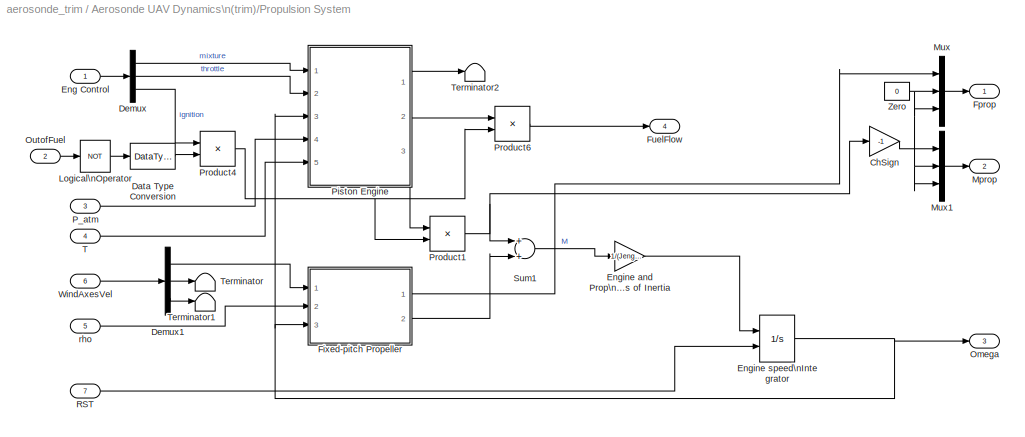
BLOCK [SubSystem] Aerosonde UAV Dynamics\n(trim)/Propulsion System
  FunctionWithSeparateData = off
  MaskCallbackString = |||||||||||
  MaskDescription = The block models a general aviation propulsion system including a piston engine and a fixed-pitch propeller.
  MaskEnableString = on,on,on,on,on,on,on,on,on,on,on,on
  MaskHelp = The block provides a general aviation propulsion system using the AeroSim piston engine and fixed-pitch propeller models.\n<P><B>Inputs:</B>\n<LI>Control = the 3x1 engine control vector [Throttle Mixture Ignition]</LI>\n<LI>OutofFuel = the out-of-fuel flag (0 or 1)</LI>\n<LI>p = the static pressure at current altitude, in Pa</LI>\n<LI>T = the air temperature at current altitude, in K</LI>\n<LI>rho...<+1764ch>
  MaskHideContents = off
  MaskIconFrame = on
  MaskIconOpaque = on
  MaskIconRotate = none
  MaskIconUnits = autoscale
  MaskPortRotate = default
  MaskPromptString = Initial engine speed:|Engine RPM vector:|Engine MAP vector:|Engine fuel flow look-up table:|Engine power look-up table:|Engine moment of inertia:|Propeller advance ratio vector:|Propeller coefficient of thrust vector:|Propeller coefficient of power vector:|Propeller radius:|Propeller moment of inertia:|Sea-level temperature:
  MaskStyleString = edit,edit,edit,edit,edit,edit,edit,edit,edit,edit,edit,edit
  MaskToolTipString = on,on,on,on,on,on,on,on,on,on,on,on
  MaskTunableValueString = on,on,on,on,on,on,on,on,on,on,on,on
  MaskType = General-aviation propulsion system
  MaskValueString = Omega0|as.RPM|as.MAP|as.FuelFlow|as.Power|as.Jeng|as.J|as.CT|as.CP|as.Rprop|as.Jprop|as.TSL
  MaskVariables = OmegaIni=@1;RPM=@2;MAP=@3;FuelFlow=@4;Power=@5;Jeng=@6;J=@7;CT=@8;CP=@9;Rprop=@10;Jprop=@11;TSL=@12;
  MaskVisibilityString = on,on,on,on,on,on,on,on,on,on,on,on
  MinAlgLoopOccurrences = off
  Opaque = off
  Ports = [7, 4]
  PropExecContextOutsideSubsystem = off
  RTWSystemCode = Auto
  RequestExecContextInheritance = off
  SID = 218
BLOCK [Gain] Aerosonde UAV Dynamics\n(trim)/Propulsion System/ChSign
  Gain = -1
  SID = 226
BLOCK [DataTypeConversion] Aerosonde UAV Dynamics\n(trim)/Propulsion System/Data Type Conversion
  OutDataTypeMode = double
  OutDataTypeStr = double
  SID = 227
BLOCK [Demux] Aerosonde UAV Dynamics\n(trim)/Propulsion System/Demux
  Outputs = 3
  Ports = [1, 3]
  SID = 228
BLOCK [Demux] Aerosonde UAV Dynamics\n(trim)/Propulsion System/Demux1
  Outputs = 3
  Ports = [1, 3]
  SID = 229
BLOCK [Inport] Aerosonde UAV Dynamics\n(trim)/Propulsion System/Eng Control
  IconDisplay = Port number
  PortDimensions = [3 1]
  SID = 219
BLOCK [Gain] Aerosonde UAV Dynamics\n(trim)/Propulsion System/Engine and Prop\nMoments of Inertia
  Gain = 1/(Jeng+Jprop)
  SID = 230
BLOCK [Integrator] Aerosonde UAV Dynamics\n(trim)/Propulsion System/Engine speed\nIntegrator
  ExternalReset = rising
  InitialCondition = OmegaIni
  LimitOutput = on
  LowerSaturationLimit = 0
  Ports = [2, 1]
  SID = 231
BLOCK [SubSystem] Aerosonde UAV Dynamics\n(trim)/Propulsion System/Fixed-pitch Propeller
  FunctionWithSeparateData = off
  MaskHideContents = off
  MinAlgLoopOccurrences = off
  Opaque = off
  Ports = [3, 2]
  PropExecContextOutsideSubsystem = off
  RTWSystemCode = Auto
  RequestExecContextInheritance = off
  SID = 232
BLOCK [Gain] Aerosonde UAV Dynamics\n(trim)/Propulsion System/Fixed-pitch Propeller/4 R^4 // pi^2
  Gain = 4*Rprop^4/pi^2
  SID = 236
BLOCK [Gain] Aerosonde UAV Dynamics\n(trim)/Propulsion System/Fixed-pitch Propeller/4 R^5// pi^3
  Gain = -4*Rprop^5/pi^3
  SID = 237
BLOCK [Inport] Aerosonde UAV Dynamics\n(trim)/Propulsion System/Fixed-pitch Propeller/Airspeed
  DataType = double
  IconDisplay = Port number
  OutDataTypeStr = double
  PortDimensions = 1
  SID = 233
BLOCK [Lookup] Aerosonde UAV Dynamics\n(trim)/Propulsion System/Fixed-pitch Propeller/Coeff of\nPower
  InputValues = J
  SID = 238
  Table = CP
BLOCK [Lookup] Aerosonde UAV Dynamics\n(trim)/Propulsion System/Fixed-pitch Propeller/Coefficient \nof Thrust
  InputValues = J
  SID = 239
  Table = CT
BLOCK [Outport] Aerosonde UAV Dynamics\n(trim)/Propulsion System/Fixed-pitch Propeller/Fprop
  IconDisplay = Port number
  SID = 246
BLOCK [Outport] Aerosonde UAV Dynamics\n(trim)/Propulsion System/Fixed-pitch Propeller/Mprop
  IconDisplay = Port number
  Port = 2
  SID = 247
BLOCK [Inport] Aerosonde UAV Dynamics\n(trim)/Propulsion System/Fixed-pitch Propeller/Omega
  DataType = double
  IconDisplay = Port number
  OutDataTypeStr = double
  Port = 3
  PortDimensions = 1
  SID = 235
BLOCK [Math] Aerosonde UAV Dynamics\n(trim)/Propulsion System/Fixed-pitch Propeller/Omega^2
  Operator = square
  Ports = [1, 1]
  SID = 240
BLOCK [Product] Aerosonde UAV Dynamics\n(trim)/Propulsion System/Fixed-pitch Propeller/Va//Omega
  Inputs = */
  Ports = [2, 1]
  RndMeth = Floor
  SID = 241
BLOCK [Gain] Aerosonde UAV Dynamics\n(trim)/Propulsion System/Fixed-pitch Propeller/pi//R
  Gain = pi/Rprop
  SID = 242
BLOCK [Inport] Aerosonde UAV Dynamics\n(trim)/Propulsion System/Fixed-pitch Propeller/rho
  DataType = double
  IconDisplay = Port number
  OutDataTypeStr = double
  Port = 2
  PortDimensions = 1
  SID = 234
BLOCK [Product] Aerosonde UAV Dynamics\n(trim)/Propulsion System/Fixed-pitch Propeller/rho Omega^2 
  Ports = [2, 1]
  RndMeth = Floor
  SID = 243
BLOCK [Product] Aerosonde UAV Dynamics\n(trim)/Propulsion System/Fixed-pitch Propeller/rho Omega^2 C_P
  Ports = [2, 1]
  RndMeth = Floor
  SID = 244
BLOCK [Product] Aerosonde UAV Dynamics\n(trim)/Propulsion System/Fixed-pitch Propeller/rho Omega^2 C_T
  Ports = [2, 1]
  RndMeth = Floor
  SID = 245
BLOCK [Outport] Aerosonde UAV Dynamics\n(trim)/Propulsion System/Fprop
  IconDisplay = Port number
  SID = 291
BLOCK [Outport] Aerosonde UAV Dynamics\n(trim)/Propulsion System/FuelFlow
  IconDisplay = Port number
  Port = 4
  SID = 294
BLOCK [Logic] Aerosonde UAV Dynamics\n(trim)/Propulsion System/Logical\nOperator
  Operator = NOT
  Ports = [1, 1]
  SID = 248
BLOCK [Outport] Aerosonde UAV Dynamics\n(trim)/Propulsion System/Mprop
  IconDisplay = Port number
  Port = 2
  SID = 292
BLOCK [Mux] Aerosonde UAV Dynamics\n(trim)/Propulsion System/Mux
  DisplayOption = bar
  Inputs = 3
  Ports = [3, 1]
  SID = 249
BLOCK [Mux] Aerosonde UAV Dynamics\n(trim)/Propulsion System/Mux1
  DisplayOption = bar
  Inputs = 3
  Ports = [3, 1]
  SID = 250
BLOCK [Outport] Aerosonde UAV Dynamics\n(trim)/Propulsion System/Omega
  IconDisplay = Port number
  Port = 3
  SID = 293
BLOCK [Inport] Aerosonde UAV Dynamics\n(trim)/Propulsion System/OutofFuel
  IconDisplay = Port number
  Port = 2
  PortDimensions = 1
  SID = 220
BLOCK [Inport] Aerosonde UAV Dynamics\n(trim)/Propulsion System/P_atm
  DataType = double
  IconDisplay = Port number
  OutDataTypeStr = double
  Port = 3
  PortDimensions = 1
  SID = 221
BLOCK [SubSystem] Aerosonde UAV Dynamics\n(trim)/Propulsion System/Piston Engine
  FunctionWithSeparateData = off
  MaskCallbackString = ||||
  MaskDescription = The piston engine model computes the engine parameters at current throttle setting, engine rpm, and altitude.
  MaskEnableString = on,on,on,on,on
  MaskHelp = The block provides a piston engine model based on look-up tables for manifold pressure, engine speed (rpm), fuel flow and power.\n<P><B>Inputs:</B>\n<LI>Thr = the throttle command (as a fraction of atmospheric pressure)</LI>\n<LI>Mix = the air to fuel mixture ratio</LI>\n<LI>Omega = the engine shaft rotation speed</LI>\n<LI>p = the atmospheric pressure, in Pa</LI>\n<LI>T = the atmospheric temperat...<+815ch>
  MaskHideContents = off
  MaskIconFrame = on
  MaskIconOpaque = on
  MaskIconRotate = none
  MaskIconUnits = autoscale
  MaskPortRotate = default
  MaskPromptString = RPM vector:|MAP vector:|Fuel flow 2-D look-up table:|Power 2-D look-up table:|Sea-level temperature:
  MaskStyleString = edit,edit,edit,edit,edit
  MaskToolTipString = on,on,on,on,on
  MaskTunableValueString = on,on,on,on,on
  MaskType = Piston Engine
  MaskValueString = RPM|MAP|FuelFlow|Power|TSL
  MaskVariables = RPM=@1;MAP=@2;fflow=@3;Power=@4;TSL=@5;
  MaskVisibilityString = on,on,on,on,on
  MinAlgLoopOccurrences = off
  Opaque = off
  Ports = [5, 3]
  PropExecContextOutsideSubsystem = off
  RTWSystemCode = Auto
  RequestExecContextInheritance = off
  SID = 251
BLOCK [Outport] Aerosonde UAV Dynamics\n(trim)/Propulsion System/Piston Engine/AirFlow
  IconDisplay = Port number
  SID = 280
BLOCK [SubSystem] Aerosonde UAV Dynamics\n(trim)/Propulsion System/Piston Engine/Altitude correction \nfor  Power
  FunctionWithSeparateData = off
  MaskHideContents = off
  MinAlgLoopOccurrences = off
  Opaque = off
  Ports = [1, 1]
  PropExecContextOutsideSubsystem = off
  RTWSystemCode = Auto
  RequestExecContextInheritance = off
  SID = 257
BLOCK [Math] Aerosonde UAV Dynamics\n(trim)/Propulsion System/Piston Engine/Altitude correction \nfor  Power/Math\nFunction
  Operator = sqrt
  Ports = [1, 1]
  SID = 259
BLOCK [Outport] Aerosonde UAV Dynamics\n(trim)/Propulsion System/Piston Engine/Altitude correction \nfor  Power/Power correction
  IconDisplay = Port number
  SID = 262
BLOCK [Product] Aerosonde UAV Dynamics\n(trim)/Propulsion System/Piston Engine/Altitude correction \nfor  Power/Product of\nElements
  InputSameDT = off
  Inputs = /
  OutDataTypeMode = Inherit via internal rule
  OutDataTypeStr = Inherit: Inherit via internal rule
  Ports = [1, 1]
  RndMeth = Floor
  SID = 260
  SaturateOnIntegerOverflow = off
BLOCK [Gain] Aerosonde UAV Dynamics\n(trim)/Propulsion System/Piston Engine/Altitude correction \nfor  Power/Sea-level\ntemperature 
  Gain = TSL
  SID = 261
BLOCK [Inport] Aerosonde UAV Dynamics\n(trim)/Propulsion System/Piston Engine/Altitude correction \nfor  Power/T
  IconDisplay = Port number
  SID = 258
BLOCK [Product] Aerosonde UAV Dynamics\n(trim)/Propulsion System/Piston Engine/Engine\ntorque
  Inputs = */
  Ports = [2, 1]
  RndMeth = Floor
  SID = 263
BLOCK [Lookup2D] Aerosonde UAV Dynamics\n(trim)/Propulsion System/Piston Engine/Fuel flow\nLUT
  ColumnIndex = MAP
  RowIndex = RPM
  SID = 264
  Table = fflow
BLOCK [Outport] Aerosonde UAV Dynamics\n(trim)/Propulsion System/Piston Engine/FuelFlow
  IconDisplay = Port number
  Port = 2
  SID = 281
BLOCK [Product] Aerosonde UAV Dynamics\n(trim)/Propulsion System/Piston Engine/Get air flow
  Ports = [2, 1]
  RndMeth = Floor
  SID = 265
BLOCK [SubSystem] Aerosonde UAV Dynamics\n(trim)/Propulsion System/Piston Engine/Intake
  FunctionWithSeparateData = off
  MaskHideContents = off
  MinAlgLoopOccurrences = off
  Opaque = off
  Ports = [2, 1]
  PropExecContextOutsideSubsystem = off
  RTWSystemCode = Auto
  RequestExecContextInheritance = off
  SID = 266
BLOCK [Product] Aerosonde UAV Dynamics\n(trim)/Propulsion System/Piston Engine/Intake/Get MAP
  Ports = [2, 1]
  RndMeth = Floor
  SID = 269
BLOCK [Outport] Aerosonde UAV Dynamics\n(trim)/Propulsion System/Piston Engine/Intake/MAP
  IconDisplay = Port number
  SID = 275
BLOCK [Constant] Aerosonde UAV Dynamics\n(trim)/Propulsion System/Piston Engine/Intake/MAP min
  SID = 270
  Value = as.MAPmin
BLOCK [Inport] Aerosonde UAV Dynamics\n(trim)/Propulsion System/Piston Engine/Intake/P_atm
  DataType = double
  IconDisplay = Port number
  OutDataTypeStr = double
  Port = 2
  PortDimensions = 1
  SID = 268
BLOCK [Saturate] Aerosonde UAV Dynamics\n(trim)/Propulsion System/Piston Engine/Intake/Saturation
  InputPortMap = u0
  LowerLimit = as.MAPmin
  Ports = [1, 1]
  SID = 271
  UpperLimit = inf
BLOCK [Sum] Aerosonde UAV Dynamics\n(trim)/Propulsion System/Piston Engine/Intake/Sum
  IconShape = round
  Inputs = |+-
  Ports = [2, 1]
  SID = 272
BLOCK [Sum] Aerosonde UAV Dynamics\n(trim)/Propulsion System/Piston Engine/Intake/Sum1
  IconShape = round
  Inputs = |++
  Ports = [2, 1]
  SID = 273
BLOCK [Inport] Aerosonde UAV Dynamics\n(trim)/Propulsion System/Piston Engine/Intake/Thr
  DataType = double
  IconDisplay = Port number
  OutDataTypeStr = double
  PortDimensions = 1
  SID = 267
BLOCK [Gain] Aerosonde UAV Dynamics\n(trim)/Propulsion System/Piston Engine/Intake/kPa
  Gain = 1/1000
  SID = 274
BLOCK [Inport] Aerosonde UAV Dynamics\n(trim)/Propulsion System/Piston Engine/Mix
  DataType = double
  IconDisplay = Port number
  OutDataTypeStr = double
  Port = 2
  PortDimensions = 1
  SID = 253
BLOCK [Inport] Aerosonde UAV Dynamics\n(trim)/Propulsion System/Piston Engine/Omega
  DataType = double
  IconDisplay = Port number
  OutDataTypeStr = double
  Port = 3
  PortDimensions = 1
  SID = 254
BLOCK [Inport] Aerosonde UAV Dynamics\n(trim)/Propulsion System/Piston Engine/P_atm
  DataType = double
  IconDisplay = Port number
  OutDataTypeStr = double
  Port = 4
  PortDimensions = 1
  SID = 255
BLOCK [Lookup2D] Aerosonde UAV Dynamics\n(trim)/Propulsion System/Piston Engine/Power LUT
  ColumnIndex = MAP
  RowIndex = RPM
  SID = 276
  Table = Power
BLOCK [Product] Aerosonde UAV Dynamics\n(trim)/Propulsion System/Piston Engine/Power at\naltitude
  Ports = [2, 1]
  RndMeth = Floor
  SID = 277
BLOCK [Inport] Aerosonde UAV Dynamics\n(trim)/Propulsion System/Piston Engine/T
  DataType = double
  IconDisplay = Port number
  OutDataTypeStr = double
  Port = 5
  PortDimensions = 1
  SID = 256
BLOCK [Inport] Aerosonde UAV Dynamics\n(trim)/Propulsion System/Piston Engine/Thr
  DataType = double
  IconDisplay = Port number
  OutDataTypeStr = double
  PortDimensions = 1
  SID = 252
BLOCK [Outport] Aerosonde UAV Dynamics\n(trim)/Propulsion System/Piston Engine/Torque
  IconDisplay = Port number
  Port = 3
  SID = 282
BLOCK [Gain] Aerosonde UAV Dynamics\n(trim)/Propulsion System/Piston Engine/g//hr 2 kg//s
  Gain = 1/1000/3600
  SID = 278
BLOCK [Gain] Aerosonde UAV Dynamics\n(trim)/Propulsion System/Piston Engine/rad//s 2 RPM
  Gain = 30/pi
  SID = 279
BLOCK [Product] Aerosonde UAV Dynamics\n(trim)/Propulsion System/Product1
  Ports = [2, 1]
  RndMeth = Floor
  SID = 283
BLOCK [Product] Aerosonde UAV Dynamics\n(trim)/Propulsion System/Product4
  Ports = [2, 1]
  RndMeth = Floor
  SID = 284
BLOCK [Product] Aerosonde UAV Dynamics\n(trim)/Propulsion System/Product6
  Ports = [2, 1]
  RndMeth = Floor
  SID = 285
BLOCK [Inport] Aerosonde UAV Dynamics\n(trim)/Propulsion System/RST
  DataType = double
  IconDisplay = Port number
  OutDataTypeStr = double
  Port = 7
  PortDimensions = 1
  SID = 225
BLOCK [Sum] Aerosonde UAV Dynamics\n(trim)/Propulsion System/Sum1
  Ports = [2, 1]
  SID = 286
BLOCK [Inport] Aerosonde UAV Dynamics\n(trim)/Propulsion System/T
  DataType = double
  IconDisplay = Port number
  OutDataTypeStr = double
  Port = 4
  PortDimensions = 1
  SID = 222
BLOCK [Terminator] Aerosonde UAV Dynamics\n(trim)/Propulsion System/Terminator
  SID = 287
BLOCK [Terminator] Aerosonde UAV Dynamics\n(trim)/Propulsion System/Terminator1
  SID = 288
BLOCK [Terminator] Aerosonde UAV Dynamics\n(trim)/Propulsion System/Terminator2
  SID = 289
BLOCK [Inport] Aerosonde UAV Dynamics\n(trim)/Propulsion System/WindAxesVel
  IconDisplay = Port number
  Port = 6
  PortDimensions = [3 1]
  SID = 224
BLOCK [Constant] Aerosonde UAV Dynamics\n(trim)/Propulsion System/Zero
  SID = 290
  Value = 0
BLOCK [Inport] Aerosonde UAV Dynamics\n(trim)/Propulsion System/rho
  DataType = double
  IconDisplay = Port number
  OutDataTypeStr = double
  Port = 5
  PortDimensions = 1
  SID = 223
BLOCK [Inport] Aerosonde UAV Dynamics\n(trim)/RST
  IconDisplay = Port number
  Port = 2
  SID = 4
BLOCK [Outport] Aerosonde UAV Dynamics\n(trim)/Sensors
  IconDisplay = Port number
  Port = 2
  SID = 310
BLOCK [Outport] Aerosonde UAV Dynamics\n(trim)/States
  IconDisplay = Port number
  SID = 309
BLOCK [Terminator] Aerosonde UAV Dynamics\n(trim)/Terminator
  SID = 295
BLOCK [SubSystem] Aerosonde UAV Dynamics\n(trim)/Total Moment
  FunctionWithSeparateData = off
  MaskHideContents = off
  MinAlgLoopOccurrences = off
  Opaque = off
  Ports = [5, 2]
  PropExecContextOutsideSubsystem = off
  RTWSystemCode = Auto
  RequestExecContextInheritance = off
  SID = 296
BLOCK [Inport] Aerosonde UAV Dynamics\n(trim)/Total Moment/CGpos
  IconDisplay = Port number
  Port = 5
  PortDimensions = 3
  SID = 301
BLOCK [Inport] Aerosonde UAV Dynamics\n(trim)/Total Moment/Faero
  IconDisplay = Port number
  PortDimensions = 3
  SID = 297
BLOCK [Outport] Aerosonde UAV Dynamics\n(trim)/Total Moment/Fcg
  IconDisplay = Port number
  SID = 306
BLOCK [Inport] Aerosonde UAV Dynamics\n(trim)/Total Moment/Fprop
  IconDisplay = Port number
  Port = 3
  PortDimensions = 3
  SID = 299
BLOCK [Inport] Aerosonde UAV Dynamics\n(trim)/Total Moment/Maero
  IconDisplay = Port number
  Port = 2
  PortDimensions = 3
  SID = 298
BLOCK [Outport] Aerosonde UAV Dynamics\n(trim)/Total Moment/Mcg
  IconDisplay = Port number
  Port = 2
  SID = 307
BLOCK [Reference] Aerosonde UAV Dynamics\n(trim)/Total Moment/Moments about CG \ndue to Propulsion  \nForces  REF=aerolibbdyn/Moments about CG \ndue to Forces
  FunctionWithSeparateData = off
  Ports = [3, 1]
  RTWMemSecDataConstants = Inherit from model
  RTWMemSecDataInternal = Inherit from model
  RTWMemSecDataParameters = Inherit from model
  RTWMemSecFuncExecute = Inherit from model
  RTWMemSecFuncInitTerm = Inherit from model
  SID = 302
  ShowPortLabels = FromPortIcon
  SourceBlock = aerolibbdyn/Moments about CG \ndue to Forces
  SourceType = Moments About CG Due To Forces
  SystemSampleTime = -1
BLOCK [Inport] Aerosonde UAV Dynamics\n(trim)/Total Moment/Mprop
  IconDisplay = Port number
  Port = 4
  PortDimensions = 3
  SID = 300
BLOCK [Sum] Aerosonde UAV Dynamics\n(trim)/Total Moment/Sum1
  Inputs = +++
  Ports = [3, 1]
  SID = 303
BLOCK [Sum] Aerosonde UAV Dynamics\n(trim)/Total Moment/Total forces \n(excluding g)
  Ports = [2, 1]
  SID = 304
BLOCK [Constant] Aerosonde UAV Dynamics\n(trim)/Total Moment/r_prop
  OutDataTypeMode = double
  OutDataTypeStr = double
  SID = 305
  Value = as.rHub
BLOCK [Inport] Aerosonde UAV Dynamics\n(trim)/V_wind
  IconDisplay = Port number
  Port = 3
  SID = 5
BLOCK [Outport] Aerosonde UAV Dynamics\n(trim)/VelW
  IconDisplay = Port number
  Port = 3
  SID = 311
BLOCK [Inport] Aerosonde UAV Dynamics\n(trim)/omega_wind
  IconDisplay = Port number
  Port = 4
  SID = 6
BLOCK [Constant] Aerosonde UAV Dynamics\n(trim)/r_aero
  SID = 308
  Value = as.rAC
BLOCK [Demux] Demux
  Outputs = 3
  Ports = [1, 3]
  SID = 325
BLOCK [Mux] Mux
  DisplayOption = bar
  Inputs = 7
  Ports = [7, 1]
  SID = 360
BLOCK [Constant] Reset
  SID = 332
  Value = 0
BLOCK [Terminator] Terminator
  SID = 334
BLOCK [Terminator] Terminator1
  SID = 335
BLOCK [Terminator] Terminator2
  SID = 336
BLOCK [Terminator] Terminator3
  SID = 337
BLOCK [Terminator] Terminator4
  SID = 338
BLOCK [Terminator] Terminator5
  SID = 352
BLOCK [Terminator] Terminator6
  SID = 356
BLOCK [Terminator] Terminator7
  SID = 358
BLOCK [Terminator] Terminator8
  SID = 359
BLOCK [Terminator] Terminator9
  SID = 379
BLOCK [Outport] V
  IconDisplay = Port number
  SID = 357
BLOCK [Inport] aileron
  IconDisplay = Port number
  Port = 2
  SID = 361
BLOCK [Outport] beta
  IconDisplay = Port number
  Port = 2
  SID = 377
BLOCK [Inport] elevator
  IconDisplay = Port number
  SID = 351
BLOCK [Ground] flap
  SID = 365
BLOCK [Outport] h
  IconDisplay = Port number
  Port = 3
  SID = 353
BLOCK [Constant] ignition
  SID = 368
BLOCK [Constant] mixture
  SID = 367
  Value = 13
BLOCK [Inport] rudder
  IconDisplay = Port number
  Port = 3
  SID = 362
BLOCK [Inport] throttle
  IconDisplay = Port number
  Port = 4
  SID = 363
BLOCK [Ground] wind rot
  SID = 355
BLOCK [Ground] wind vel
  SID = 354
ANNOTATION (root): Aerosonde UAV (v2011a)\nTrimming configuration\nBased on the AeroSim Blockset\nAdapted by JFW (18 Feb 2011) for the Mathworks Aerospce Blockset\nSimulation sample time: 20 ms\nAircraft control: open-loop
ANNOTATION Aerosonde UAV Dynamics\n(trim): Aerodynamic Model
ANNOTATION Aerosonde UAV Dynamics\n(trim): Inputs
ANNOTATION Aerosonde UAV Dynamics\n(trim): Outputs
ANNOTATION Aerosonde UAV Dynamics\n(trim): Propulsion Model
ANNOTATION Aerosonde UAV Dynamics\n(trim): Solve equations of motion
ANNOTATION Aerosonde UAV Dynamics\n(trim): measured acceleration
ANNOTATION Aerosonde UAV Dynamics\n(trim): t qbar P
ANNOTATION Aerosonde UAV Dynamics\n(trim)/Aerodynamics: Aerodynamic Coefficients
ANNOTATION Aerosonde UAV Dynamics\n(trim)/Aerodynamics: Aerodynamic Model
ANNOTATION Aerosonde UAV Dynamics\n(trim)/Aerodynamics: Aerodynamic Parameters
ANNOTATION Aerosonde UAV Dynamics\n(trim)/Aerodynamics: Inputs
ANNOTATION Aerosonde UAV Dynamics\n(trim)/Aerodynamics: Outputs
ANNOTATION Aerosonde UAV Dynamics\n(trim)/Aerodynamics/Force Coefficients: Force coefficients
ANNOTATION Aerosonde UAV Dynamics\n(trim)/Aerodynamics/Force Coefficients/Drag Coefficients: Drag coefficient
ANNOTATION Aerosonde UAV Dynamics\n(trim)/Aerodynamics/Force Coefficients/Lift Coefficients: Lift Coefficients
ANNOTATION Aerosonde UAV Dynamics\n(trim)/Aerodynamics/Force Coefficients/Side Force Coefficients: Side force coefficients
ANNOTATION Aerosonde UAV Dynamics\n(trim)/Aerodynamics/Moment Coefficients: Moment coefficients
ANNOTATION Aerosonde UAV Dynamics\n(trim)/Aerodynamics/Moment Coefficients/Roll Moment Coefficients: Roll moment coefficient
ANNOTATION Aerosonde UAV Dynamics\n(trim)/Aerodynamics/Moment Coefficients/Yaw Moment Coefficients: Yaw moment coefficient
ANNOTATION Aerosonde UAV Dynamics\n(trim)/Aerodynamics/Wind-axes Velocities\n(with algebraic loops broken): (alphadot assumed \nzero to break \nalgebraic loop)
ANNOTATION Aerosonde UAV Dynamics\n(trim)/Aerodynamics/Wind-axes Velocities\n(with algebraic loops broken): (wind acceleration\n assumed zero)
ANNOTATION Aerosonde UAV Dynamics\n(trim)/Aerodynamics/Wind-axes Velocities\n(with algebraic loops broken)/Calculate \nalphadot: Calculate alphadot
ANNOTATION Aerosonde UAV Dynamics\n(trim)/Aerodynamics/Wind-axes Velocities\n(with algebraic loops broken)/Calculate \nalphadot: W
ANNOTATION Aerosonde UAV Dynamics\n(trim)/Aircraft Mass & Inertia: Compute current aircraft mass
ANNOTATION Aerosonde UAV Dynamics\n(trim)/Propulsion System/Fixed-pitch Propeller: Fixed-pitch \nPropeller
ANNOTATION Aerosonde UAV Dynamics\n(trim)/Propulsion System/Piston Engine: Compute MAP from \nthrottle area fraction
ANNOTATION Aerosonde UAV Dynamics\n(trim)/Propulsion System/Piston Engine: Engine parameter\nlook-up tables
ANNOTATION Aerosonde UAV Dynamics\n(trim)/Propulsion System/Piston Engine/Altitude correction \nfor  Power: Altitude correction for Power
ANNOTATION Aerosonde UAV Dynamics\n(trim)/Total Moment: Sum forces and moments
ANNOTATION Aerosonde UAV Dynamics\n(trim)/Total Moment: Total moments at CG location
LINE Aerosonde UAV Dynamics\n(trim)/Aerodynamic\nForces and Moments:1 -> Aerosonde UAV Dynamics\n(trim)/Total Moment:1
LINE Aerosonde UAV Dynamics\n(trim)/Aerodynamic\nForces and Moments:2 -> Aerosonde UAV Dynamics\n(trim)/Total Moment:2
NET Aerosonde UAV Dynamics\n(trim)/Aerodynamics/AeroCon:1 -> Aerosonde UAV Dynamics\n(trim)/Aerodynamics/Force Coefficients:2, Aerosonde UAV Dynamics\n(trim)/Aerodynamics/Moment Coefficients:2
NET Aerosonde UAV Dynamics\n(trim)/Aerodynamics/Force Coefficients/2c:1 -> Aerosonde UAV Dynamics\n(trim)/Aerodynamics/Force Coefficients/Lift Coefficients:5, Aerosonde UAV Dynamics\n(trim)/Aerodynamics/Force Coefficients/Side Force Coefficients:4
LINE Aerosonde UAV Dynamics\n(trim)/Aerodynamics/Force Coefficients/AlphaDot:1 -> Aerosonde UAV Dynamics\n(trim)/Aerodynamics/Force Coefficients/Lift Coefficients:3
NET Aerosonde UAV Dynamics\n(trim)/Aerodynamics/Force Coefficients/AngularRates:1 -> Aerosonde UAV Dynamics\n(trim)/Aerodynamics/Force Coefficients/Lift Coefficients:4, Aerosonde UAV Dynamics\n(trim)/Aerodynamics/Force Coefficients/Side Force Coefficients:3
LINE Aerosonde UAV Dynamics\n(trim)/Aerodynamics/Force Coefficients/ChSign1:1 -> Aerosonde UAV Dynamics\n(trim)/Aerodynamics/Force Coefficients/Mux:3
LINE Aerosonde UAV Dynamics\n(trim)/Aerodynamics/Force Coefficients/ChSign:1 -> Aerosonde UAV Dynamics\n(trim)/Aerodynamics/Force Coefficients/Mux:1
NET Aerosonde UAV Dynamics\n(trim)/Aerodynamics/Force Coefficients/Control:1 -> Aerosonde UAV Dynamics\n(trim)/Aerodynamics/Force Coefficients/Drag Coefficients:1, Aerosonde UAV Dynamics\n(trim)/Aerodynamics/Force Coefficients/Lift Coefficients:2, Aerosonde UAV Dynamics\n(trim)/Aerodynamics/Force Coefficients/Side Force Coefficients:2
LINE Aerosonde UAV Dynamics\n(trim)/Aerodynamics/Force Coefficients/DCM':1 -> Aerosonde UAV Dynamics\n(trim)/Aerodynamics/Force Coefficients/transform to \nbody axes:1
LINE Aerosonde UAV Dynamics\n(trim)/Aerodynamics/Force Coefficients/Demux2:1 -> Aerosonde UAV Dynamics\n(trim)/Aerodynamics/Force Coefficients/2c:1
NET Aerosonde UAV Dynamics\n(trim)/Aerodynamics/Force Coefficients/Demux2:2 -> Aerosonde UAV Dynamics\n(trim)/Aerodynamics/Force Coefficients/Mux1:2, Aerosonde UAV Dynamics\n(trim)/Aerodynamics/Force Coefficients/Side Force Coefficients:1
NET Aerosonde UAV Dynamics\n(trim)/Aerodynamics/Force Coefficients/Demux2:3 -> Aerosonde UAV Dynamics\n(trim)/Aerodynamics/Force Coefficients/Lift Coefficients:1, Aerosonde UAV Dynamics\n(trim)/Aerodynamics/Force Coefficients/Mux1:1
LINE Aerosonde UAV Dynamics\n(trim)/Aerodynamics/Force Coefficients/Direction Cosine Matrix\nBody to Wind:1 -> Aerosonde UAV Dynamics\n(trim)/Aerodynamics/Force Coefficients/DCM':1
LINE Aerosonde UAV Dynamics\n(trim)/Aerodynamics/Force Coefficients/Drag Coefficients/(CL-CL0)^2//(pi e AR):1 -> Aerosonde UAV Dynamics\n(trim)/Aerodynamics/Force Coefficients/Drag Coefficients/Sum1:4
LINE Aerosonde UAV Dynamics\n(trim)/Aerodynamics/Force Coefficients/Drag Coefficients/Abs4:1 -> Aerosonde UAV Dynamics\n(trim)/Aerodynamics/Force Coefficients/Drag Coefficients/CDdf:1
LINE Aerosonde UAV Dynamics\n(trim)/Aerodynamics/Force Coefficients/Drag Coefficients/CDM:1 -> Aerosonde UAV Dynamics\n(trim)/Aerodynamics/Force Coefficients/Drag Coefficients/Sum1:3
LINE Aerosonde UAV Dynamics\n(trim)/Aerodynamics/Force Coefficients/Drag Coefficients/CDdf:1 -> Aerosonde UAV Dynamics\n(trim)/Aerodynamics/Force Coefficients/Drag Coefficients/Sum1:2
LINE Aerosonde UAV Dynamics\n(trim)/Aerodynamics/Force Coefficients/Drag Coefficients/CL min drag:1 -> Aerosonde UAV Dynamics\n(trim)/Aerodynamics/Force Coefficients/Drag Coefficients/Sum:2
LINE Aerosonde UAV Dynamics\n(trim)/Aerodynamics/Force Coefficients/Drag Coefficients/CL:1 -> Aerosonde UAV Dynamics\n(trim)/Aerodynamics/Force Coefficients/Drag Coefficients/Sum:1
LINE Aerosonde UAV Dynamics\n(trim)/Aerodynamics/Force Coefficients/Drag Coefficients/CL^2:1 -> Aerosonde UAV Dynamics\n(trim)/Aerodynamics/Force Coefficients/Drag Coefficients/(CL-CL0)^2//(pi e AR):1
LINE Aerosonde UAV Dynamics\n(trim)/Aerodynamics/Force Coefficients/Drag Coefficients/Constant terms:1 -> Aerosonde UAV Dynamics\n(trim)/Aerodynamics/Force Coefficients/Drag Coefficients/Sum1:1
LINE Aerosonde UAV Dynamics\n(trim)/Aerodynamics/Force Coefficients/Drag Coefficients/Mach:1 -> Aerosonde UAV Dynamics\n(trim)/Aerodynamics/Force Coefficients/Drag Coefficients/CDM:1
LINE Aerosonde UAV Dynamics\n(trim)/Aerodynamics/Force Coefficients/Drag Coefficients/Sum1:1 -> Aerosonde UAV Dynamics\n(trim)/Aerodynamics/Force Coefficients/Drag Coefficients/CD:1
LINE Aerosonde UAV Dynamics\n(trim)/Aerodynamics/Force Coefficients/Drag Coefficients/Sum:1 -> Aerosonde UAV Dynamics\n(trim)/Aerodynamics/Force Coefficients/Drag Coefficients/CL^2:1
LINE Aerosonde UAV Dynamics\n(trim)/Aerodynamics/Force Coefficients/Drag Coefficients/control:1 -> Aerosonde UAV Dynamics\n(trim)/Aerodynamics/Force Coefficients/Drag Coefficients/Abs4:1
LINE Aerosonde UAV Dynamics\n(trim)/Aerodynamics/Force Coefficients/Drag Coefficients:1 -> Aerosonde UAV Dynamics\n(trim)/Aerodynamics/Force Coefficients/ChSign:1
LINE Aerosonde UAV Dynamics\n(trim)/Aerodynamics/Force Coefficients/Lift Coefficients/2V_a:1 -> Aerosonde UAV Dynamics\n(trim)/Aerodynamics/Force Coefficients/Lift Coefficients/CL*c//(2V_a):2
LINE Aerosonde UAV Dynamics\n(trim)/Aerodynamics/Force Coefficients/Lift Coefficients/CL*c//(2V_a):1 -> Aerosonde UAV Dynamics\n(trim)/Aerodynamics/Force Coefficients/Lift Coefficients/Sum2:4
LINE Aerosonde UAV Dynamics\n(trim)/Aerodynamics/Force Coefficients/Lift Coefficients/CL0:1 -> Aerosonde UAV Dynamics\n(trim)/Aerodynamics/Force Coefficients/Lift Coefficients/Sum2:1
LINE Aerosonde UAV Dynamics\n(trim)/Aerodynamics/Force Coefficients/Lift Coefficients/CLM:1 -> Aerosonde UAV Dynamics\n(trim)/Aerodynamics/Force Coefficients/Lift Coefficients/Sum2:5
LINE Aerosonde UAV Dynamics\n(trim)/Aerodynamics/Force Coefficients/Lift Coefficients/CLalpha:1 -> Aerosonde UAV Dynamics\n(trim)/Aerodynamics/Force Coefficients/Lift Coefficients/Sum2:2
LINE Aerosonde UAV Dynamics\n(trim)/Aerodynamics/Force Coefficients/Lift Coefficients/CLalphadot:1 -> Aerosonde UAV Dynamics\n(trim)/Aerodynamics/Force Coefficients/Lift Coefficients/Sum:1
LINE Aerosonde UAV Dynamics\n(trim)/Aerodynamics/Force Coefficients/Lift Coefficients/CLq:1 -> Aerosonde UAV Dynamics\n(trim)/Aerodynamics/Force Coefficients/Lift Coefficients/Sum:2
LINE Aerosonde UAV Dynamics\n(trim)/Aerodynamics/Force Coefficients/Lift Coefficients/Mach:1 -> Aerosonde UAV Dynamics\n(trim)/Aerodynamics/Force Coefficients/Lift Coefficients/CLM:1
LINE Aerosonde UAV Dynamics\n(trim)/Aerodynamics/Force Coefficients/Lift Coefficients/Sum2:1 -> Aerosonde UAV Dynamics\n(trim)/Aerodynamics/Force Coefficients/Lift Coefficients/CL:1
LINE Aerosonde UAV Dynamics\n(trim)/Aerodynamics/Force Coefficients/Lift Coefficients/Sum:1 -> Aerosonde UAV Dynamics\n(trim)/Aerodynamics/Force Coefficients/Lift Coefficients/c:1
LINE Aerosonde UAV Dynamics\n(trim)/Aerodynamics/Force Coefficients/Lift Coefficients/[CLdf, CLde, 0, 0]:1 -> Aerosonde UAV Dynamics\n(trim)/Aerodynamics/Force Coefficients/Lift Coefficients/Sum2:3
LINE Aerosonde UAV Dynamics\n(trim)/Aerodynamics/Force Coefficients/Lift Coefficients/alpha:1 -> Aerosonde UAV Dynamics\n(trim)/Aerodynamics/Force Coefficients/Lift Coefficients/CLalpha:1
LINE Aerosonde UAV Dynamics\n(trim)/Aerodynamics/Force Coefficients/Lift Coefficients/alphadot:1 -> Aerosonde UAV Dynamics\n(trim)/Aerodynamics/Force Coefficients/Lift Coefficients/CLalphadot:1
LINE Aerosonde UAV Dynamics\n(trim)/Aerodynamics/Force Coefficients/Lift Coefficients/c:1 -> Aerosonde UAV Dynamics\n(trim)/Aerodynamics/Force Coefficients/Lift Coefficients/CL*c//(2V_a):1
LINE Aerosonde UAV Dynamics\n(trim)/Aerodynamics/Force Coefficients/Lift Coefficients/control:1 -> Aerosonde UAV Dynamics\n(trim)/Aerodynamics/Force Coefficients/Lift Coefficients/[CLdf, CLde, 0, 0]:1
LINE Aerosonde UAV Dynamics\n(trim)/Aerodynamics/Force Coefficients/Lift Coefficients/pqr:1 -> Aerosonde UAV Dynamics\n(trim)/Aerodynamics/Force Coefficients/Lift Coefficients/CLq:1
NET Aerosonde UAV Dynamics\n(trim)/Aerodynamics/Force Coefficients/Lift Coefficients:1 -> Aerosonde UAV Dynamics\n(trim)/Aerodynamics/Force Coefficients/ChSign1:1, Aerosonde UAV Dynamics\n(trim)/Aerodynamics/Force Coefficients/Drag Coefficients:3
NET Aerosonde UAV Dynamics\n(trim)/Aerodynamics/Force Coefficients/Mach:1 -> Aerosonde UAV Dynamics\n(trim)/Aerodynamics/Force Coefficients/Drag Coefficients:2, Aerosonde UAV Dynamics\n(trim)/Aerodynamics/Force Coefficients/Lift Coefficients:6
LINE Aerosonde UAV Dynamics\n(trim)/Aerodynamics/Force Coefficients/Mux1:1 -> Aerosonde UAV Dynamics\n(trim)/Aerodynamics/Force Coefficients/Direction Cosine Matrix\nBody to Wind:1
LINE Aerosonde UAV Dynamics\n(trim)/Aerodynamics/Force Coefficients/Mux:1 -> Aerosonde UAV Dynamics\n(trim)/Aerodynamics/Force Coefficients/transform to \nbody axes:2
LINE Aerosonde UAV Dynamics\n(trim)/Aerodynamics/Force Coefficients/Side Force Coefficients/2V_a:1 -> Aerosonde UAV Dynamics\n(trim)/Aerodynamics/Force Coefficients/Side Force Coefficients/CY*b//(2V_a):2
LINE Aerosonde UAV Dynamics\n(trim)/Aerodynamics/Force Coefficients/Side Force Coefficients/CY*b//(2V_a):1 -> Aerosonde UAV Dynamics\n(trim)/Aerodynamics/Force Coefficients/Side Force Coefficients/Sum3:3
LINE Aerosonde UAV Dynamics\n(trim)/Aerodynamics/Force Coefficients/Side Force Coefficients/CYbeta:1 -> Aerosonde UAV Dynamics\n(trim)/Aerodynamics/Force Coefficients/Side Force Coefficients/Sum3:1
LINE Aerosonde UAV Dynamics\n(trim)/Aerodynamics/Force Coefficients/Side Force Coefficients/Sum3:1 -> Aerosonde UAV Dynamics\n(trim)/Aerodynamics/Force Coefficients/Side Force Coefficients/CY:1
LINE Aerosonde UAV Dynamics\n(trim)/Aerodynamics/Force Coefficients/Side Force Coefficients/Wing span1:1 -> Aerosonde UAV Dynamics\n(trim)/Aerodynamics/Force Coefficients/Side Force Coefficients/CY*b//(2V_a):1
LINE Aerosonde UAV Dynamics\n(trim)/Aerodynamics/Force Coefficients/Side Force Coefficients/[0, 0, CYda, CYdr]:1 -> Aerosonde UAV Dynamics\n(trim)/Aerodynamics/Force Coefficients/Side Force Coefficients/Sum3:2
LINE Aerosonde UAV Dynamics\n(trim)/Aerodynamics/Force Coefficients/Side Force Coefficients/[CYp, 0, CYr]:1 -> Aerosonde UAV Dynamics\n(trim)/Aerodynamics/Force Coefficients/Side Force Coefficients/Wing span1:1
LINE Aerosonde UAV Dynamics\n(trim)/Aerodynamics/Force Coefficients/Side Force Coefficients/angular rates:1 -> Aerosonde UAV Dynamics\n(trim)/Aerodynamics/Force Coefficients/Side Force Coefficients/[CYp, 0, CYr]:1
LINE Aerosonde UAV Dynamics\n(trim)/Aerodynamics/Force Coefficients/Side Force Coefficients/beta:1 -> Aerosonde UAV Dynamics\n(trim)/Aerodynamics/Force Coefficients/Side Force Coefficients/CYbeta:1
LINE Aerosonde UAV Dynamics\n(trim)/Aerodynamics/Force Coefficients/Side Force Coefficients/control:1 -> Aerosonde UAV Dynamics\n(trim)/Aerodynamics/Force Coefficients/Side Force Coefficients/[0, 0, CYda, CYdr]:1
LINE Aerosonde UAV Dynamics\n(trim)/Aerodynamics/Force Coefficients/Side Force Coefficients:1 -> Aerosonde UAV Dynamics\n(trim)/Aerodynamics/Force Coefficients/Mux:2
LINE Aerosonde UAV Dynamics\n(trim)/Aerodynamics/Force Coefficients/VBetaAlpha:1 -> Aerosonde UAV Dynamics\n(trim)/Aerodynamics/Force Coefficients/Demux2:1
LINE Aerosonde UAV Dynamics\n(trim)/Aerodynamics/Force Coefficients/transform to \nbody axes:1 -> Aerosonde UAV Dynamics\n(trim)/Aerodynamics/Force Coefficients/[-CD, CY, -CL]:1
LINE Aerosonde UAV Dynamics\n(trim)/Aerodynamics/Force Coefficients:1 -> Aerosonde UAV Dynamics\n(trim)/Aerodynamics/Mux:1
NET Aerosonde UAV Dynamics\n(trim)/Aerodynamics/Moment Coefficients/2c:1 -> Aerosonde UAV Dynamics\n(trim)/Aerodynamics/Moment Coefficients/Pitch Moment Coefficients:5, Aerosonde UAV Dynamics\n(trim)/Aerodynamics/Moment Coefficients/Roll Moment Coefficients:4, Aerosonde UAV Dynamics\n(trim)/Aerodynamics/Moment Coefficients/Yaw Moment Coefficients:4
LINE Aerosonde UAV Dynamics\n(trim)/Aerodynamics/Moment Coefficients/AlphaDot:1 -> Aerosonde UAV Dynamics\n(trim)/Aerodynamics/Moment Coefficients/Pitch Moment Coefficients:3
NET Aerosonde UAV Dynamics\n(trim)/Aerodynamics/Moment Coefficients/AngularRates:1 -> Aerosonde UAV Dynamics\n(trim)/Aerodynamics/Moment Coefficients/Pitch Moment Coefficients:4, Aerosonde UAV Dynamics\n(trim)/Aerodynamics/Moment Coefficients/Roll Moment Coefficients:3, Aerosonde UAV Dynamics\n(trim)/Aerodynamics/Moment Coefficients/Yaw Moment Coefficients:3
NET Aerosonde UAV Dynamics\n(trim)/Aerodynamics/Moment Coefficients/Control:1 -> Aerosonde UAV Dynamics\n(trim)/Aerodynamics/Moment Coefficients/Pitch Moment Coefficients:2, Aerosonde UAV Dynamics\n(trim)/Aerodynamics/Moment Coefficients/Roll Moment Coefficients:2, Aerosonde UAV Dynamics\n(trim)/Aerodynamics/Moment Coefficients/Yaw Moment Coefficients:2
LINE Aerosonde UAV Dynamics\n(trim)/Aerodynamics/Moment Coefficients/Demux1:1 -> Aerosonde UAV Dynamics\n(trim)/Aerodynamics/Moment Coefficients/2c:1
NET Aerosonde UAV Dynamics\n(trim)/Aerodynamics/Moment Coefficients/Demux1:2 -> Aerosonde UAV Dynamics\n(trim)/Aerodynamics/Moment Coefficients/Roll Moment Coefficients:1, Aerosonde UAV Dynamics\n(trim)/Aerodynamics/Moment Coefficients/Yaw Moment Coefficients:1
LINE Aerosonde UAV Dynamics\n(trim)/Aerodynamics/Moment Coefficients/Demux1:3 -> Aerosonde UAV Dynamics\n(trim)/Aerodynamics/Moment Coefficients/Pitch Moment Coefficients:1
LINE Aerosonde UAV Dynamics\n(trim)/Aerodynamics/Moment Coefficients/Mach:1 -> Aerosonde UAV Dynamics\n(trim)/Aerodynamics/Moment Coefficients/Pitch Moment Coefficients:6
LINE Aerosonde UAV Dynamics\n(trim)/Aerodynamics/Moment Coefficients/Mux:1 -> Aerosonde UAV Dynamics\n(trim)/Aerodynamics/Moment Coefficients/[-Cl, Cm, -Cn]:1
LINE Aerosonde UAV Dynamics\n(trim)/Aerodynamics/Moment Coefficients/Pitch Moment Coefficients/2V_a:1 -> Aerosonde UAV Dynamics\n(trim)/Aerodynamics/Moment Coefficients/Pitch Moment Coefficients/Cm*c//(2V_a):2
LINE Aerosonde UAV Dynamics\n(trim)/Aerodynamics/Moment Coefficients/Pitch Moment Coefficients/CMalpha:1 -> Aerosonde UAV Dynamics\n(trim)/Aerodynamics/Moment Coefficients/Pitch Moment Coefficients/Sum2:2
LINE Aerosonde UAV Dynamics\n(trim)/Aerodynamics/Moment Coefficients/Pitch Moment Coefficients/Cm*c//(2V_a):1 -> Aerosonde UAV Dynamics\n(trim)/Aerodynamics/Moment Coefficients/Pitch Moment Coefficients/Sum2:4
LINE Aerosonde UAV Dynamics\n(trim)/Aerodynamics/Moment Coefficients/Pitch Moment Coefficients/Cm0:1 -> Aerosonde UAV Dynamics\n(trim)/Aerodynamics/Moment Coefficients/Pitch Moment Coefficients/Sum2:1
LINE Aerosonde UAV Dynamics\n(trim)/Aerodynamics/Moment Coefficients/Pitch Moment Coefficients/CmM:1 -> Aerosonde UAV Dynamics\n(trim)/Aerodynamics/Moment Coefficients/Pitch Moment Coefficients/Sum2:5
LINE Aerosonde UAV Dynamics\n(trim)/Aerodynamics/Moment Coefficients/Pitch Moment Coefficients/Cmalphadot:1 -> Aerosonde UAV Dynamics\n(trim)/Aerodynamics/Moment Coefficients/Pitch Moment Coefficients/Sum:1
LINE Aerosonde UAV Dynamics\n(trim)/Aerodynamics/Moment Coefficients/Pitch Moment Coefficients/Cmq:1 -> Aerosonde UAV Dynamics\n(trim)/Aerodynamics/Moment Coefficients/Pitch Moment Coefficients/Sum:2
LINE Aerosonde UAV Dynamics\n(trim)/Aerodynamics/Moment Coefficients/Pitch Moment Coefficients/Mach:1 -> Aerosonde UAV Dynamics\n(trim)/Aerodynamics/Moment Coefficients/Pitch Moment Coefficients/CmM:1
LINE Aerosonde UAV Dynamics\n(trim)/Aerodynamics/Moment Coefficients/Pitch Moment Coefficients/Sum2:1 -> Aerosonde UAV Dynamics\n(trim)/Aerodynamics/Moment Coefficients/Pitch Moment Coefficients/Cm:1
LINE Aerosonde UAV Dynamics\n(trim)/Aerodynamics/Moment Coefficients/Pitch Moment Coefficients/Sum:1 -> Aerosonde UAV Dynamics\n(trim)/Aerodynamics/Moment Coefficients/Pitch Moment Coefficients/c:1
LINE Aerosonde UAV Dynamics\n(trim)/Aerodynamics/Moment Coefficients/Pitch Moment Coefficients/[Cmdf, Cmde, 0, 0]:1 -> Aerosonde UAV Dynamics\n(trim)/Aerodynamics/Moment Coefficients/Pitch Moment Coefficients/Sum2:3
LINE Aerosonde UAV Dynamics\n(trim)/Aerodynamics/Moment Coefficients/Pitch Moment Coefficients/alpha:1 -> Aerosonde UAV Dynamics\n(trim)/Aerodynamics/Moment Coefficients/Pitch Moment Coefficients/CMalpha:1
LINE Aerosonde UAV Dynamics\n(trim)/Aerodynamics/Moment Coefficients/Pitch Moment Coefficients/alphadot:1 -> Aerosonde UAV Dynamics\n(trim)/Aerodynamics/Moment Coefficients/Pitch Moment Coefficients/Cmalphadot:1
LINE Aerosonde UAV Dynamics\n(trim)/Aerodynamics/Moment Coefficients/Pitch Moment Coefficients/c:1 -> Aerosonde UAV Dynamics\n(trim)/Aerodynamics/Moment Coefficients/Pitch Moment Coefficients/Cm*c//(2V_a):1
LINE Aerosonde UAV Dynamics\n(trim)/Aerodynamics/Moment Coefficients/Pitch Moment Coefficients/control:1 -> Aerosonde UAV Dynamics\n(trim)/Aerodynamics/Moment Coefficients/Pitch Moment Coefficients/[Cmdf, Cmde, 0, 0]:1
LINE Aerosonde UAV Dynamics\n(trim)/Aerodynamics/Moment Coefficients/Pitch Moment Coefficients/pqr:1 -> Aerosonde UAV Dynamics\n(trim)/Aerodynamics/Moment Coefficients/Pitch Moment Coefficients/Cmq:1
LINE Aerosonde UAV Dynamics\n(trim)/Aerodynamics/Moment Coefficients/Pitch Moment Coefficients:1 -> Aerosonde UAV Dynamics\n(trim)/Aerodynamics/Moment Coefficients/Mux:2
LINE Aerosonde UAV Dynamics\n(trim)/Aerodynamics/Moment Coefficients/Roll Moment Coefficients/2V:1 -> Aerosonde UAV Dynamics\n(trim)/Aerodynamics/Moment Coefficients/Roll Moment Coefficients/CY*b//(2V):2
LINE Aerosonde UAV Dynamics\n(trim)/Aerodynamics/Moment Coefficients/Roll Moment Coefficients/CY*b//(2V):1 -> Aerosonde UAV Dynamics\n(trim)/Aerodynamics/Moment Coefficients/Roll Moment Coefficients/Sum3:3
LINE Aerosonde UAV Dynamics\n(trim)/Aerodynamics/Moment Coefficients/Roll Moment Coefficients/Clbeta:1 -> Aerosonde UAV Dynamics\n(trim)/Aerodynamics/Moment Coefficients/Roll Moment Coefficients/Sum3:1
LINE Aerosonde UAV Dynamics\n(trim)/Aerodynamics/Moment Coefficients/Roll Moment Coefficients/Sum3:1 -> Aerosonde UAV Dynamics\n(trim)/Aerodynamics/Moment Coefficients/Roll Moment Coefficients/Cl:1
LINE Aerosonde UAV Dynamics\n(trim)/Aerodynamics/Moment Coefficients/Roll Moment Coefficients/Wing span:1 -> Aerosonde UAV Dynamics\n(trim)/Aerodynamics/Moment Coefficients/Roll Moment Coefficients/CY*b//(2V):1
LINE Aerosonde UAV Dynamics\n(trim)/Aerodynamics/Moment Coefficients/Roll Moment Coefficients/[0, 0, Clda, Cldr]:1 -> Aerosonde UAV Dynamics\n(trim)/Aerodynamics/Moment Coefficients/Roll Moment Coefficients/Sum3:2
LINE Aerosonde UAV Dynamics\n(trim)/Aerodynamics/Moment Coefficients/Roll Moment Coefficients/[Clp, 0, Clr]:1 -> Aerosonde UAV Dynamics\n(trim)/Aerodynamics/Moment Coefficients/Roll Moment Coefficients/Wing span:1
LINE Aerosonde UAV Dynamics\n(trim)/Aerodynamics/Moment Coefficients/Roll Moment Coefficients/angular rates:1 -> Aerosonde UAV Dynamics\n(trim)/Aerodynamics/Moment Coefficients/Roll Moment Coefficients/[Clp, 0, Clr]:1
LINE Aerosonde UAV Dynamics\n(trim)/Aerodynamics/Moment Coefficients/Roll Moment Coefficients/beta:1 -> Aerosonde UAV Dynamics\n(trim)/Aerodynamics/Moment Coefficients/Roll Moment Coefficients/Clbeta:1
LINE Aerosonde UAV Dynamics\n(trim)/Aerodynamics/Moment Coefficients/Roll Moment Coefficients/control:1 -> Aerosonde UAV Dynamics\n(trim)/Aerodynamics/Moment Coefficients/Roll Moment Coefficients/[0, 0, Clda, Cldr]:1
LINE Aerosonde UAV Dynamics\n(trim)/Aerodynamics/Moment Coefficients/Roll Moment Coefficients:1 -> Aerosonde UAV Dynamics\n(trim)/Aerodynamics/Moment Coefficients/Mux:1
LINE Aerosonde UAV Dynamics\n(trim)/Aerodynamics/Moment Coefficients/VBetaAlpha:1 -> Aerosonde UAV Dynamics\n(trim)/Aerodynamics/Moment Coefficients/Demux1:1
LINE Aerosonde UAV Dynamics\n(trim)/Aerodynamics/Moment Coefficients/Yaw Moment Coefficients/2V_a:1 -> Aerosonde UAV Dynamics\n(trim)/Aerodynamics/Moment Coefficients/Yaw Moment Coefficients/Cn*b//(2V_a):2
LINE Aerosonde UAV Dynamics\n(trim)/Aerodynamics/Moment Coefficients/Yaw Moment Coefficients/Cn*b//(2V_a):1 -> Aerosonde UAV Dynamics\n(trim)/Aerodynamics/Moment Coefficients/Yaw Moment Coefficients/Sum3:3
LINE Aerosonde UAV Dynamics\n(trim)/Aerodynamics/Moment Coefficients/Yaw Moment Coefficients/Cnbeta:1 -> Aerosonde UAV Dynamics\n(trim)/Aerodynamics/Moment Coefficients/Yaw Moment Coefficients/Sum3:1
LINE Aerosonde UAV Dynamics\n(trim)/Aerodynamics/Moment Coefficients/Yaw Moment Coefficients/Sum3:1 -> Aerosonde UAV Dynamics\n(trim)/Aerodynamics/Moment Coefficients/Yaw Moment Coefficients/Cn:1
LINE Aerosonde UAV Dynamics\n(trim)/Aerodynamics/Moment Coefficients/Yaw Moment Coefficients/Wing span:1 -> Aerosonde UAV Dynamics\n(trim)/Aerodynamics/Moment Coefficients/Yaw Moment Coefficients/Cn*b//(2V_a):1
LINE Aerosonde UAV Dynamics\n(trim)/Aerodynamics/Moment Coefficients/Yaw Moment Coefficients/[0, 0, Cnda, Cndr]:1 -> Aerosonde UAV Dynamics\n(trim)/Aerodynamics/Moment Coefficients/Yaw Moment Coefficients/Sum3:2
LINE Aerosonde UAV Dynamics\n(trim)/Aerodynamics/Moment Coefficients/Yaw Moment Coefficients/[Cnp, 0, Cnr]:1 -> Aerosonde UAV Dynamics\n(trim)/Aerodynamics/Moment Coefficients/Yaw Moment Coefficients/Wing span:1
LINE Aerosonde UAV Dynamics\n(trim)/Aerodynamics/Moment Coefficients/Yaw Moment Coefficients/angular rates:1 -> Aerosonde UAV Dynamics\n(trim)/Aerodynamics/Moment Coefficients/Yaw Moment Coefficients/[Cnp, 0, Cnr]:1
LINE Aerosonde UAV Dynamics\n(trim)/Aerodynamics/Moment Coefficients/Yaw Moment Coefficients/beta:1 -> Aerosonde UAV Dynamics\n(trim)/Aerodynamics/Moment Coefficients/Yaw Moment Coefficients/Cnbeta:1
LINE Aerosonde UAV Dynamics\n(trim)/Aerodynamics/Moment Coefficients/Yaw Moment Coefficients/control:1 -> Aerosonde UAV Dynamics\n(trim)/Aerodynamics/Moment Coefficients/Yaw Moment Coefficients/[0, 0, Cnda, Cndr]:1
LINE Aerosonde UAV Dynamics\n(trim)/Aerodynamics/Moment Coefficients/Yaw Moment Coefficients:1 -> Aerosonde UAV Dynamics\n(trim)/Aerodynamics/Moment Coefficients/Mux:3
LINE Aerosonde UAV Dynamics\n(trim)/Aerodynamics/Moment Coefficients:1 -> Aerosonde UAV Dynamics\n(trim)/Aerodynamics/Mux:2
LINE Aerosonde UAV Dynamics\n(trim)/Aerodynamics/Mux:1 -> Aerosonde UAV Dynamics\n(trim)/Aerodynamics/AeroCoeff_ba:1
LINE Aerosonde UAV Dynamics\n(trim)/Aerodynamics/Rates:1 -> Aerosonde UAV Dynamics\n(trim)/Aerodynamics/Sum:1
NET Aerosonde UAV Dynamics\n(trim)/Aerodynamics/Sum:1 -> Aerosonde UAV Dynamics\n(trim)/Aerodynamics/Force Coefficients:4, Aerosonde UAV Dynamics\n(trim)/Aerodynamics/Moment Coefficients:4
LINE Aerosonde UAV Dynamics\n(trim)/Aerodynamics/VelB:1 -> Aerosonde UAV Dynamics\n(trim)/Aerodynamics/Wind-axes Velocities\n(with algebraic loops broken):1
LINE Aerosonde UAV Dynamics\n(trim)/Aerodynamics/VelBdot:1 -> Aerosonde UAV Dynamics\n(trim)/Aerodynamics/Wind-axes Velocities\n(with algebraic loops broken):5
NET Aerosonde UAV Dynamics\n(trim)/Aerodynamics/Wind-axes Velocities\n(with algebraic loops broken)/Calculate \nalphadot/Demux1:1 -> Aerosonde UAV Dynamics\n(trim)/Aerodynamics/Wind-axes Velocities\n(with algebraic loops broken)/Calculate \nalphadot/Math\nFunction:1, Aerosonde UAV Dynamics\n(trim)/Aerodynamics/Wind-axes Velocities\n(with algebraic loops broken)/Calculate \nalphadot/Product:2
LINE Aerosonde UAV Dynamics\n(trim)/Aerodynamics/Wind-axes Velocities\n(with algebraic loops broken)/Calculate \nalphadot/Demux1:2 -> Aerosonde UAV Dynamics\n(trim)/Aerodynamics/Wind-axes Velocities\n(with algebraic loops broken)/Calculate \nalphadot/Terminator1:1
NET Aerosonde UAV Dynamics\n(trim)/Aerodynamics/Wind-axes Velocities\n(with algebraic loops broken)/Calculate \nalphadot/Demux1:3 -> Aerosonde UAV Dynamics\n(trim)/Aerodynamics/Wind-axes Velocities\n(with algebraic loops broken)/Calculate \nalphadot/Math\nFunction1:1, Aerosonde UAV Dynamics\n(trim)/Aerodynamics/Wind-axes Velocities\n(with algebraic loops broken)/Calculate \nalphadot/Product1:2
LINE Aerosonde UAV Dynamics\n(trim)/Aerodynamics/Wind-axes Velocities\n(with algebraic loops broken)/Calculate \nalphadot/Demux:1 -> Aerosonde UAV Dynamics\n(trim)/Aerodynamics/Wind-axes Velocities\n(with algebraic loops broken)/Calculate \nalphadot/Product1:1
LINE Aerosonde UAV Dynamics\n(trim)/Aerodynamics/Wind-axes Velocities\n(with algebraic loops broken)/Calculate \nalphadot/Demux:2 -> Aerosonde UAV Dynamics\n(trim)/Aerodynamics/Wind-axes Velocities\n(with algebraic loops broken)/Calculate \nalphadot/Terminator:1
LINE Aerosonde UAV Dynamics\n(trim)/Aerodynamics/Wind-axes Velocities\n(with algebraic loops broken)/Calculate \nalphadot/Demux:3 -> Aerosonde UAV Dynamics\n(trim)/Aerodynamics/Wind-axes Velocities\n(with algebraic loops broken)/Calculate \nalphadot/Product:1
LINE Aerosonde UAV Dynamics\n(trim)/Aerodynamics/Wind-axes Velocities\n(with algebraic loops broken)/Calculate \nalphadot/Math\nFunction1:1 -> Aerosonde UAV Dynamics\n(trim)/Aerodynamics/Wind-axes Velocities\n(with algebraic loops broken)/Calculate \nalphadot/Sum1:2
LINE Aerosonde UAV Dynamics\n(trim)/Aerodynamics/Wind-axes Velocities\n(with algebraic loops broken)/Calculate \nalphadot/Math\nFunction:1 -> Aerosonde UAV Dynamics\n(trim)/Aerodynamics/Wind-axes Velocities\n(with algebraic loops broken)/Calculate \nalphadot/Sum1:1
LINE Aerosonde UAV Dynamics\n(trim)/Aerodynamics/Wind-axes Velocities\n(with algebraic loops broken)/Calculate \nalphadot/Product1:1 -> Aerosonde UAV Dynamics\n(trim)/Aerodynamics/Wind-axes Velocities\n(with algebraic loops broken)/Calculate \nalphadot/Sum:1
LINE Aerosonde UAV Dynamics\n(trim)/Aerodynamics/Wind-axes Velocities\n(with algebraic loops broken)/Calculate \nalphadot/Product2:1 -> Aerosonde UAV Dynamics\n(trim)/Aerodynamics/Wind-axes Velocities\n(with algebraic loops broken)/Calculate \nalphadot/alphadot:1
LINE Aerosonde UAV Dynamics\n(trim)/Aerodynamics/Wind-axes Velocities\n(with algebraic loops broken)/Calculate \nalphadot/Product:1 -> Aerosonde UAV Dynamics\n(trim)/Aerodynamics/Wind-axes Velocities\n(with algebraic loops broken)/Calculate \nalphadot/Sum:2
LINE Aerosonde UAV Dynamics\n(trim)/Aerodynamics/Wind-axes Velocities\n(with algebraic loops broken)/Calculate \nalphadot/Sum1:1 -> Aerosonde UAV Dynamics\n(trim)/Aerodynamics/Wind-axes Velocities\n(with algebraic loops broken)/Calculate \nalphadot/Product2:2
LINE Aerosonde UAV Dynamics\n(trim)/Aerodynamics/Wind-axes Velocities\n(with algebraic loops broken)/Calculate \nalphadot/Sum:1 -> Aerosonde UAV Dynamics\n(trim)/Aerodynamics/Wind-axes Velocities\n(with algebraic loops broken)/Calculate \nalphadot/Product2:1
LINE Aerosonde UAV Dynamics\n(trim)/Aerodynamics/Wind-axes Velocities\n(with algebraic loops broken)/Calculate \nalphadot/[U V W]:1 -> Aerosonde UAV Dynamics\n(trim)/Aerodynamics/Wind-axes Velocities\n(with algebraic loops broken)/Calculate \nalphadot/Demux1:1
LINE Aerosonde UAV Dynamics\n(trim)/Aerodynamics/Wind-axes Velocities\n(with algebraic loops broken)/Calculate \nalphadot/[Udot Vdot Wdot]:1 -> Aerosonde UAV Dynamics\n(trim)/Aerodynamics/Wind-axes Velocities\n(with algebraic loops broken)/Calculate \nalphadot/Demux:1
LINE Aerosonde UAV Dynamics\n(trim)/Aerodynamics/Wind-axes Velocities\n(with algebraic loops broken)/Calculate \nalphadot:1 -> Aerosonde UAV Dynamics\n(trim)/Aerodynamics/Wind-axes Velocities\n(with algebraic loops broken)/Terminator3:1
LINE Aerosonde UAV Dynamics\n(trim)/Aerodynamics/Wind-axes Velocities\n(with algebraic loops broken)/Dynamic Pressure:1 -> Aerosonde UAV Dynamics\n(trim)/Aerodynamics/Wind-axes Velocities\n(with algebraic loops broken)/qbar (pdyn):1
LINE Aerosonde UAV Dynamics\n(trim)/Aerodynamics/Wind-axes Velocities\n(with algebraic loops broken)/Incidence, Sideslip,\n& Airspeed:1 -> Aerosonde UAV Dynamics\n(trim)/Aerodynamics/Wind-axes Velocities\n(with algebraic loops broken)/Mux1:3
LINE Aerosonde UAV Dynamics\n(trim)/Aerodynamics/Wind-axes Velocities\n(with algebraic loops broken)/Incidence, Sideslip,\n& Airspeed:2 -> Aerosonde UAV Dynamics\n(trim)/Aerodynamics/Wind-axes Velocities\n(with algebraic loops broken)/Mux1:2
LINE Aerosonde UAV Dynamics\n(trim)/Aerodynamics/Wind-axes Velocities\n(with algebraic loops broken)/Incidence, Sideslip,\n& Airspeed:3 -> Aerosonde UAV Dynamics\n(trim)/Aerodynamics/Wind-axes Velocities\n(with algebraic loops broken)/Mux1:1
LINE Aerosonde UAV Dynamics\n(trim)/Aerodynamics/Wind-axes Velocities\n(with algebraic loops broken)/Mach Number:1 -> Aerosonde UAV Dynamics\n(trim)/Aerodynamics/Wind-axes Velocities\n(with algebraic loops broken)/Mach:1
LINE Aerosonde UAV Dynamics\n(trim)/Aerodynamics/Wind-axes Velocities\n(with algebraic loops broken)/Mux1:1 -> Aerosonde UAV Dynamics\n(trim)/Aerodynamics/Wind-axes Velocities\n(with algebraic loops broken)/VBetaAlpha:1
NET Aerosonde UAV Dynamics\n(trim)/Aerodynamics/Wind-axes Velocities\n(with algebraic loops broken)/Sum1:1 -> Aerosonde UAV Dynamics\n(trim)/Aerodynamics/Wind-axes Velocities\n(with algebraic loops broken)/Calculate \nalphadot:2, Aerosonde UAV Dynamics\n(trim)/Aerodynamics/Wind-axes Velocities\n(with algebraic loops broken)/Dynamic Pressure:1, Aerosonde UAV Dynamics\n(trim)/Aerodynamics/Wind-axes Velocities\n(with algebraic loops broken)/Incidence, Sideslip,\n& Airspeed:1, Aerosonde UAV Dynamics\n(trim)/Aerodynamics/Wind-axes Velocities\n(with algebraic loops broken)/Mach Number:1
LINE Aerosonde UAV Dynamics\n(trim)/Aerodynamics/Wind-axes Velocities\n(with algebraic loops broken)/Sum2:1 -> Aerosonde UAV Dynamics\n(trim)/Aerodynamics/Wind-axes Velocities\n(with algebraic loops broken)/Calculate \nalphadot:1
LINE Aerosonde UAV Dynamics\n(trim)/Aerodynamics/Wind-axes Velocities\n(with algebraic loops broken)/VelB:1 -> Aerosonde UAV Dynamics\n(trim)/Aerodynamics/Wind-axes Velocities\n(with algebraic loops broken)/Sum1:1
LINE Aerosonde UAV Dynamics\n(trim)/Aerodynamics/Wind-axes Velocities\n(with algebraic loops broken)/VelBdot:1 -> Aerosonde UAV Dynamics\n(trim)/Aerodynamics/Wind-axes Velocities\n(with algebraic loops broken)/Sum2:2
LINE Aerosonde UAV Dynamics\n(trim)/Aerodynamics/Wind-axes Velocities\n(with algebraic loops broken)/WindB:1 -> Aerosonde UAV Dynamics\n(trim)/Aerodynamics/Wind-axes Velocities\n(with algebraic loops broken)/Sum1:2
LINE Aerosonde UAV Dynamics\n(trim)/Aerodynamics/Wind-axes Velocities\n(with algebraic loops broken)/WindBdot=0:1 -> Aerosonde UAV Dynamics\n(trim)/Aerodynamics/Wind-axes Velocities\n(with algebraic loops broken)/Sum2:1
LINE Aerosonde UAV Dynamics\n(trim)/Aerodynamics/Wind-axes Velocities\n(with algebraic loops broken)/a:1 -> Aerosonde UAV Dynamics\n(trim)/Aerodynamics/Wind-axes Velocities\n(with algebraic loops broken)/Mach Number:2
LINE Aerosonde UAV Dynamics\n(trim)/Aerodynamics/Wind-axes Velocities\n(with algebraic loops broken)/alphadot=0:1 -> Aerosonde UAV Dynamics\n(trim)/Aerodynamics/Wind-axes Velocities\n(with algebraic loops broken)/alphadot:1
LINE Aerosonde UAV Dynamics\n(trim)/Aerodynamics/Wind-axes Velocities\n(with algebraic loops broken)/rho:1 -> Aerosonde UAV Dynamics\n(trim)/Aerodynamics/Wind-axes Velocities\n(with algebraic loops broken)/Dynamic Pressure:2
NET Aerosonde UAV Dynamics\n(trim)/Aerodynamics/Wind-axes Velocities\n(with algebraic loops broken):1 -> Aerosonde UAV Dynamics\n(trim)/Aerodynamics/Force Coefficients:1, Aerosonde UAV Dynamics\n(trim)/Aerodynamics/Moment Coefficients:1, Aerosonde UAV Dynamics\n(trim)/Aerodynamics/VelW:1
NET Aerosonde UAV Dynamics\n(trim)/Aerodynamics/Wind-axes Velocities\n(with algebraic loops broken):2 -> Aerosonde UAV Dynamics\n(trim)/Aerodynamics/Force Coefficients:5, Aerosonde UAV Dynamics\n(trim)/Aerodynamics/Mach:1, Aerosonde UAV Dynamics\n(trim)/Aerodynamics/Moment Coefficients:5
LINE Aerosonde UAV Dynamics\n(trim)/Aerodynamics/Wind-axes Velocities\n(with algebraic loops broken):3 -> Aerosonde UAV Dynamics\n(trim)/Aerodynamics/qbar (pdyn):1
NET Aerosonde UAV Dynamics\n(trim)/Aerodynamics/Wind-axes Velocities\n(with algebraic loops broken):4 -> Aerosonde UAV Dynamics\n(trim)/Aerodynamics/Force Coefficients:3, Aerosonde UAV Dynamics\n(trim)/Aerodynamics/Moment Coefficients:3
LINE Aerosonde UAV Dynamics\n(trim)/Aerodynamics/WindB:1 -> Aerosonde UAV Dynamics\n(trim)/Aerodynamics/Wind-axes Velocities\n(with algebraic loops broken):2
LINE Aerosonde UAV Dynamics\n(trim)/Aerodynamics/WindRates:1 -> Aerosonde UAV Dynamics\n(trim)/Aerodynamics/Sum:2
LINE Aerosonde UAV Dynamics\n(trim)/Aerodynamics/a :1 -> Aerosonde UAV Dynamics\n(trim)/Aerodynamics/Wind-axes Velocities\n(with algebraic loops broken):3
LINE Aerosonde UAV Dynamics\n(trim)/Aerodynamics/rho:1 -> Aerosonde UAV Dynamics\n(trim)/Aerodynamics/Wind-axes Velocities\n(with algebraic loops broken):4
NET Aerosonde UAV Dynamics\n(trim)/Aerodynamics:1 -> Aerosonde UAV Dynamics\n(trim)/AeroCoeff:1, Aerosonde UAV Dynamics\n(trim)/Aerodynamic\nForces and Moments:1
NET Aerosonde UAV Dynamics\n(trim)/Aerodynamics:2 -> Aerosonde UAV Dynamics\n(trim)/Propulsion System:6, Aerosonde UAV Dynamics\n(trim)/VelW:1
LINE Aerosonde UAV Dynamics\n(trim)/Aerodynamics:3 -> Aerosonde UAV Dynamics\n(trim)/Mach:1
NET Aerosonde UAV Dynamics\n(trim)/Aerodynamics:4 -> Aerosonde UAV Dynamics\n(trim)/Aerodynamic\nForces and Moments:2, Aerosonde UAV Dynamics\n(trim)/Mux2:2
NET Aerosonde UAV Dynamics\n(trim)/Aircraft Mass & Inertia/ChSign:1 -> Aerosonde UAV Dynamics\n(trim)/Aircraft Mass & Inertia/Estimate\nCenter of Gravity:2, Aerosonde UAV Dynamics\n(trim)/Aircraft Mass & Inertia/Estimate\nInertia Tensor:2, Aerosonde UAV Dynamics\n(trim)/Aircraft Mass & Inertia/Fuel Integrator:1, Aerosonde UAV Dynamics\n(trim)/Aircraft Mass & Inertia/mdot:1
LINE Aerosonde UAV Dynamics\n(trim)/Aircraft Mass & Inertia/Estimate\nCenter of Gravity:1 -> Aerosonde UAV Dynamics\n(trim)/Aircraft Mass & Inertia/CGpos:1
LINE Aerosonde UAV Dynamics\n(trim)/Aircraft Mass & Inertia/Estimate\nCenter of Gravity:2 -> Aerosonde UAV Dynamics\n(trim)/Aircraft Mass & Inertia/CGposdot:1
LINE Aerosonde UAV Dynamics\n(trim)/Aircraft Mass & Inertia/Estimate\nInertia Tensor:1 -> Aerosonde UAV Dynamics\n(trim)/Aircraft Mass & Inertia/Inertia:1
LINE Aerosonde UAV Dynamics\n(trim)/Aircraft Mass & Inertia/Estimate\nInertia Tensor:2 -> Aerosonde UAV Dynamics\n(trim)/Aircraft Mass & Inertia/Inertiadot:1
NET Aerosonde UAV Dynamics\n(trim)/Aircraft Mass & Inertia/Fuel Integrator:1 -> Aerosonde UAV Dynamics\n(trim)/Aircraft Mass & Inertia/Fuel:1, Aerosonde UAV Dynamics\n(trim)/Aircraft Mass & Inertia/Sum:1
LINE Aerosonde UAV Dynamics\n(trim)/Aircraft Mass & Inertia/FuelFlow:1 -> Aerosonde UAV Dynamics\n(trim)/Aircraft Mass & Inertia/ChSign:1
NET Aerosonde UAV Dynamics\n(trim)/Aircraft Mass & Inertia/Mass empty:1 -> Aerosonde UAV Dynamics\n(trim)/Aircraft Mass & Inertia/Relational\nOperator:2, Aerosonde UAV Dynamics\n(trim)/Aircraft Mass & Inertia/Sum:2
LINE Aerosonde UAV Dynamics\n(trim)/Aircraft Mass & Inertia/RST:1 -> Aerosonde UAV Dynamics\n(trim)/Aircraft Mass & Inertia/Fuel Integrator:2
LINE Aerosonde UAV Dynamics\n(trim)/Aircraft Mass & Inertia/Relational\nOperator:1 -> Aerosonde UAV Dynamics\n(trim)/Aircraft Mass & Inertia/OutofFuel:1
NET Aerosonde UAV Dynamics\n(trim)/Aircraft Mass & Inertia/Sum:1 -> Aerosonde UAV Dynamics\n(trim)/Aircraft Mass & Inertia/Estimate\nCenter of Gravity:1, Aerosonde UAV Dynamics\n(trim)/Aircraft Mass & Inertia/Estimate\nInertia Tensor:1, Aerosonde UAV Dynamics\n(trim)/Aircraft Mass & Inertia/Mass:1, Aerosonde UAV Dynamics\n(trim)/Aircraft Mass & Inertia/Relational\nOperator:1
NET Aerosonde UAV Dynamics\n(trim)/Aircraft Mass & Inertia:1 -> Aerosonde UAV Dynamics\n(trim)/Equations of Motion:3, Aerosonde UAV Dynamics\n(trim)/Mass:1, Aerosonde UAV Dynamics\n(trim)/Product:2
LINE Aerosonde UAV Dynamics\n(trim)/Aircraft Mass & Inertia:2 -> Aerosonde UAV Dynamics\n(trim)/Equations of Motion:4
LINE Aerosonde UAV Dynamics\n(trim)/Aircraft Mass & Inertia:3 -> Aerosonde UAV Dynamics\n(trim)/Equations of Motion:5
LINE Aerosonde UAV Dynamics\n(trim)/Aircraft Mass & Inertia:4 -> Aerosonde UAV Dynamics\n(trim)/Equations of Motion:6
NET Aerosonde UAV Dynamics\n(trim)/Aircraft Mass & Inertia:5 -> Aerosonde UAV Dynamics\n(trim)/Aerodynamic\nForces and Moments:3, Aerosonde UAV Dynamics\n(trim)/Total Moment:5
LINE Aerosonde UAV Dynamics\n(trim)/Aircraft Mass & Inertia:6 -> Aerosonde UAV Dynamics\n(trim)/Terminator:1
LINE Aerosonde UAV Dynamics\n(trim)/Aircraft Mass & Inertia:7 -> Aerosonde UAV Dynamics\n(trim)/Mux7:5
LINE Aerosonde UAV Dynamics\n(trim)/Aircraft Mass & Inertia:8 -> Aerosonde UAV Dynamics\n(trim)/Propulsion System:2
LINE Aerosonde UAV Dynamics\n(trim)/Controls:1 -> Aerosonde UAV Dynamics\n(trim)/Demux:1
LINE Aerosonde UAV Dynamics\n(trim)/Demux:1 -> Aerosonde UAV Dynamics\n(trim)/Aerodynamics:6
LINE Aerosonde UAV Dynamics\n(trim)/Demux:2 -> Aerosonde UAV Dynamics\n(trim)/Propulsion System:1
LINE Aerosonde UAV Dynamics\n(trim)/Equations of Motion/Custom Variable Mass 6DoF (Euler Angles):1 -> Aerosonde UAV Dynamics\n(trim)/Equations of Motion/Groundspeed\nV_E:1
NET Aerosonde UAV Dynamics\n(trim)/Equations of Motion/Custom Variable Mass 6DoF (Euler Angles):2 -> Aerosonde UAV Dynamics\n(trim)/Equations of Motion/Position\nX_E:1, Aerosonde UAV Dynamics\n(trim)/Equations of Motion/Selector:1
LINE Aerosonde UAV Dynamics\n(trim)/Equations of Motion/Custom Variable Mass 6DoF (Euler Angles):3 -> Aerosonde UAV Dynamics\n(trim)/Equations of Motion/Euler:1
NET Aerosonde UAV Dynamics\n(trim)/Equations of Motion/Custom Variable Mass 6DoF (Euler Angles):4 -> Aerosonde UAV Dynamics\n(trim)/Equations of Motion/DCM_be:1, Aerosonde UAV Dynamics\n(trim)/Equations of Motion/Gravity vector \nin body frame\n:1
NET Aerosonde UAV Dynamics\n(trim)/Equations of Motion/Custom Variable Mass 6DoF (Euler Angles):5 -> Aerosonde UAV Dynamics\n(trim)/Equations of Motion/Vbxw:1, Aerosonde UAV Dynamics\n(trim)/Equations of Motion/VelB:1
NET Aerosonde UAV Dynamics\n(trim)/Equations of Motion/Custom Variable Mass 6DoF (Euler Angles):6 -> Aerosonde UAV Dynamics\n(trim)/Equations of Motion/Rates:1, Aerosonde UAV Dynamics\n(trim)/Equations of Motion/Vbxw:2
LINE Aerosonde UAV Dynamics\n(trim)/Equations of Motion/Custom Variable Mass 6DoF (Euler Angles):7 -> Aerosonde UAV Dynamics\n(trim)/Equations of Motion/Ang Acc:1
LINE Aerosonde UAV Dynamics\n(trim)/Equations of Motion/Custom Variable Mass 6DoF (Euler Angles):8 -> Aerosonde UAV Dynamics\n(trim)/Equations of Motion/Sum:2
LINE Aerosonde UAV Dynamics\n(trim)/Equations of Motion/Force:1 -> Aerosonde UAV Dynamics\n(trim)/Equations of Motion/Sum3:2
LINE Aerosonde UAV Dynamics\n(trim)/Equations of Motion/Gain1:1 -> Aerosonde UAV Dynamics\n(trim)/Equations of Motion/h (m):1
LINE Aerosonde UAV Dynamics\n(trim)/Equations of Motion/Gravity vector \nin body frame\n:1 -> Aerosonde UAV Dynamics\n(trim)/Equations of Motion/Sum3:1
LINE Aerosonde UAV Dynamics\n(trim)/Equations of Motion/Ground2:1 -> Aerosonde UAV Dynamics\n(trim)/Equations of Motion/Mux1:2
LINE Aerosonde UAV Dynamics\n(trim)/Equations of Motion/Ground4:1 -> Aerosonde UAV Dynamics\n(trim)/Equations of Motion/Mux1:1
LINE Aerosonde UAV Dynamics\n(trim)/Equations of Motion/Inertia:1 -> Aerosonde UAV Dynamics\n(trim)/Equations of Motion/Custom Variable Mass 6DoF (Euler Angles):6
LINE Aerosonde UAV Dynamics\n(trim)/Equations of Motion/Inertiadot:1 -> Aerosonde UAV Dynamics\n(trim)/Equations of Motion/Custom Variable Mass 6DoF (Euler Angles):5
LINE Aerosonde UAV Dynamics\n(trim)/Equations of Motion/Moment:1 -> Aerosonde UAV Dynamics\n(trim)/Equations of Motion/Custom Variable Mass 6DoF (Euler Angles):2
LINE Aerosonde UAV Dynamics\n(trim)/Equations of Motion/Mux1:1 -> Aerosonde UAV Dynamics\n(trim)/Equations of Motion/Gravity vector \nin body frame\n:2
LINE Aerosonde UAV Dynamics\n(trim)/Equations of Motion/Selector:1 -> Aerosonde UAV Dynamics\n(trim)/Equations of Motion/Gain1:1
LINE Aerosonde UAV Dynamics\n(trim)/Equations of Motion/Sum3:1 -> Aerosonde UAV Dynamics\n(trim)/Equations of Motion/Custom Variable Mass 6DoF (Euler Angles):1
LINE Aerosonde UAV Dynamics\n(trim)/Equations of Motion/Sum:1 -> Aerosonde UAV Dynamics\n(trim)/Equations of Motion/Body accns \nVelBdot:1
LINE Aerosonde UAV Dynamics\n(trim)/Equations of Motion/Vbxw:1 -> Aerosonde UAV Dynamics\n(trim)/Equations of Motion/Sum:1
LINE Aerosonde UAV Dynamics\n(trim)/Equations of Motion/g:1 -> Aerosonde UAV Dynamics\n(trim)/Equations of Motion/Mux1:3
NET Aerosonde UAV Dynamics\n(trim)/Equations of Motion/mass:1 -> Aerosonde UAV Dynamics\n(trim)/Equations of Motion/Custom Variable Mass 6DoF (Euler Angles):4, Aerosonde UAV Dynamics\n(trim)/Equations of Motion/g:1
LINE Aerosonde UAV Dynamics\n(trim)/Equations of Motion/mdot:1 -> Aerosonde UAV Dynamics\n(trim)/Equations of Motion/Custom Variable Mass 6DoF (Euler Angles):3
NET Aerosonde UAV Dynamics\n(trim)/Equations of Motion:1 -> Aerosonde UAV Dynamics\n(trim)/Aerodynamics:1, Aerosonde UAV Dynamics\n(trim)/Mux7:1
NET Aerosonde UAV Dynamics\n(trim)/Equations of Motion:2 -> Aerosonde UAV Dynamics\n(trim)/Aerodynamics:4, Aerosonde UAV Dynamics\n(trim)/Mux4:4, Aerosonde UAV Dynamics\n(trim)/Mux7:2
NET Aerosonde UAV Dynamics\n(trim)/Equations of Motion:3 -> Aerosonde UAV Dynamics\n(trim)/Euler:1, Aerosonde UAV Dynamics\n(trim)/Mux7:3
NET Aerosonde UAV Dynamics\n(trim)/Equations of Motion:4 -> Aerosonde UAV Dynamics\n(trim)/Mux4:1, Aerosonde UAV Dynamics\n(trim)/Mux7:4
NET Aerosonde UAV Dynamics\n(trim)/Equations of Motion:5 -> Aerosonde UAV Dynamics\n(trim)/Groundspeed V_E:1, Aerosonde UAV Dynamics\n(trim)/Mux4:2
LINE Aerosonde UAV Dynamics\n(trim)/Equations of Motion:6 -> Aerosonde UAV Dynamics\n(trim)/DCM:1
LINE Aerosonde UAV Dynamics\n(trim)/Equations of Motion:7 -> Aerosonde UAV Dynamics\n(trim)/Ang Acc:1
NET Aerosonde UAV Dynamics\n(trim)/Equations of Motion:8 -> Aerosonde UAV Dynamics\n(trim)/Altitude h (m) :1, Aerosonde UAV Dynamics\n(trim)/ISA Atmosphere Model:1
LINE Aerosonde UAV Dynamics\n(trim)/Equations of Motion:9 -> Aerosonde UAV Dynamics\n(trim)/Aerodynamics:3
NET Aerosonde UAV Dynamics\n(trim)/ISA Atmosphere Model:1 -> Aerosonde UAV Dynamics\n(trim)/Mux2:3, Aerosonde UAV Dynamics\n(trim)/Propulsion System:4
LINE Aerosonde UAV Dynamics\n(trim)/ISA Atmosphere Model:2 -> Aerosonde UAV Dynamics\n(trim)/Aerodynamics:8
NET Aerosonde UAV Dynamics\n(trim)/ISA Atmosphere Model:3 -> Aerosonde UAV Dynamics\n(trim)/Mux2:1, Aerosonde UAV Dynamics\n(trim)/Propulsion System:3
NET Aerosonde UAV Dynamics\n(trim)/ISA Atmosphere Model:4 -> Aerosonde UAV Dynamics\n(trim)/Aerodynamics:7, Aerosonde UAV Dynamics\n(trim)/Propulsion System:5
LINE Aerosonde UAV Dynamics\n(trim)/Mux2:1 -> Aerosonde UAV Dynamics\n(trim)/Mux4:5
LINE Aerosonde UAV Dynamics\n(trim)/Mux4:1 -> Aerosonde UAV Dynamics\n(trim)/Sensors:1
LINE Aerosonde UAV Dynamics\n(trim)/Mux7:1 -> Aerosonde UAV Dynamics\n(trim)/States:1
LINE Aerosonde UAV Dynamics\n(trim)/Product:1 -> Aerosonde UAV Dynamics\n(trim)/Mux4:3
LINE Aerosonde UAV Dynamics\n(trim)/Propulsion System/ChSign:1 -> Aerosonde UAV Dynamics\n(trim)/Propulsion System/Mux1:1
LINE Aerosonde UAV Dynamics\n(trim)/Propulsion System/Data Type Conversion:1 -> Aerosonde UAV Dynamics\n(trim)/Propulsion System/Product4:2
LINE Aerosonde UAV Dynamics\n(trim)/Propulsion System/Demux1:1 -> Aerosonde UAV Dynamics\n(trim)/Propulsion System/Fixed-pitch Propeller:1
LINE Aerosonde UAV Dynamics\n(trim)/Propulsion System/Demux1:2 -> Aerosonde UAV Dynamics\n(trim)/Propulsion System/Terminator:1
LINE Aerosonde UAV Dynamics\n(trim)/Propulsion System/Demux1:3 -> Aerosonde UAV Dynamics\n(trim)/Propulsion System/Terminator1:1
LINE Aerosonde UAV Dynamics\n(trim)/Propulsion System/Demux:1 -> Aerosonde UAV Dynamics\n(trim)/Propulsion System/Piston Engine:1
LINE Aerosonde UAV Dynamics\n(trim)/Propulsion System/Demux:2 -> Aerosonde UAV Dynamics\n(trim)/Propulsion System/Piston Engine:2
LINE Aerosonde UAV Dynamics\n(trim)/Propulsion System/Demux:3 -> Aerosonde UAV Dynamics\n(trim)/Propulsion System/Product4:1
LINE Aerosonde UAV Dynamics\n(trim)/Propulsion System/Eng Control:1 -> Aerosonde UAV Dynamics\n(trim)/Propulsion System/Demux:1
LINE Aerosonde UAV Dynamics\n(trim)/Propulsion System/Engine and Prop\nMoments of Inertia:1 -> Aerosonde UAV Dynamics\n(trim)/Propulsion System/Engine speed\nIntegrator:1
NET Aerosonde UAV Dynamics\n(trim)/Propulsion System/Engine speed\nIntegrator:1 -> Aerosonde UAV Dynamics\n(trim)/Propulsion System/Fixed-pitch Propeller:3, Aerosonde UAV Dynamics\n(trim)/Propulsion System/Omega:1, Aerosonde UAV Dynamics\n(trim)/Propulsion System/Piston Engine:3
LINE Aerosonde UAV Dynamics\n(trim)/Propulsion System/Fixed-pitch Propeller/4 R^4 // pi^2:1 -> Aerosonde UAV Dynamics\n(trim)/Propulsion System/Fixed-pitch Propeller/Fprop:1
LINE Aerosonde UAV Dynamics\n(trim)/Propulsion System/Fixed-pitch Propeller/4 R^5// pi^3:1 -> Aerosonde UAV Dynamics\n(trim)/Propulsion System/Fixed-pitch Propeller/Mprop:1
LINE Aerosonde UAV Dynamics\n(trim)/Propulsion System/Fixed-pitch Propeller/Airspeed:1 -> Aerosonde UAV Dynamics\n(trim)/Propulsion System/Fixed-pitch Propeller/Va//Omega:1
LINE Aerosonde UAV Dynamics\n(trim)/Propulsion System/Fixed-pitch Propeller/Coeff of\nPower:1 -> Aerosonde UAV Dynamics\n(trim)/Propulsion System/Fixed-pitch Propeller/rho Omega^2 C_P:1
LINE Aerosonde UAV Dynamics\n(trim)/Propulsion System/Fixed-pitch Propeller/Coefficient \nof Thrust:1 -> Aerosonde UAV Dynamics\n(trim)/Propulsion System/Fixed-pitch Propeller/rho Omega^2 C_T:1
NET Aerosonde UAV Dynamics\n(trim)/Propulsion System/Fixed-pitch Propeller/Omega:1 -> Aerosonde UAV Dynamics\n(trim)/Propulsion System/Fixed-pitch Propeller/Omega^2:1, Aerosonde UAV Dynamics\n(trim)/Propulsion System/Fixed-pitch Propeller/Va//Omega:2
LINE Aerosonde UAV Dynamics\n(trim)/Propulsion System/Fixed-pitch Propeller/Omega^2:1 -> Aerosonde UAV Dynamics\n(trim)/Propulsion System/Fixed-pitch Propeller/rho Omega^2 :1
LINE Aerosonde UAV Dynamics\n(trim)/Propulsion System/Fixed-pitch Propeller/Va//Omega:1 -> Aerosonde UAV Dynamics\n(trim)/Propulsion System/Fixed-pitch Propeller/pi//R:1
NET Aerosonde UAV Dynamics\n(trim)/Propulsion System/Fixed-pitch Propeller/pi//R:1 -> Aerosonde UAV Dynamics\n(trim)/Propulsion System/Fixed-pitch Propeller/Coeff of\nPower:1, Aerosonde UAV Dynamics\n(trim)/Propulsion System/Fixed-pitch Propeller/Coefficient \nof Thrust:1
NET Aerosonde UAV Dynamics\n(trim)/Propulsion System/Fixed-pitch Propeller/rho Omega^2 :1 -> Aerosonde UAV Dynamics\n(trim)/Propulsion System/Fixed-pitch Propeller/rho Omega^2 C_P:2, Aerosonde UAV Dynamics\n(trim)/Propulsion System/Fixed-pitch Propeller/rho Omega^2 C_T:2
LINE Aerosonde UAV Dynamics\n(trim)/Propulsion System/Fixed-pitch Propeller/rho Omega^2 C_P:1 -> Aerosonde UAV Dynamics\n(trim)/Propulsion System/Fixed-pitch Propeller/4 R^5// pi^3:1
LINE Aerosonde UAV Dynamics\n(trim)/Propulsion System/Fixed-pitch Propeller/rho Omega^2 C_T:1 -> Aerosonde UAV Dynamics\n(trim)/Propulsion System/Fixed-pitch Propeller/4 R^4 // pi^2:1
LINE Aerosonde UAV Dynamics\n(trim)/Propulsion System/Fixed-pitch Propeller/rho:1 -> Aerosonde UAV Dynamics\n(trim)/Propulsion System/Fixed-pitch Propeller/rho Omega^2 :2
LINE Aerosonde UAV Dynamics\n(trim)/Propulsion System/Fixed-pitch Propeller:1 -> Aerosonde UAV Dynamics\n(trim)/Propulsion System/Mux:1
LINE Aerosonde UAV Dynamics\n(trim)/Propulsion System/Fixed-pitch Propeller:2 -> Aerosonde UAV Dynamics\n(trim)/Propulsion System/Sum1:2
LINE Aerosonde UAV Dynamics\n(trim)/Propulsion System/Logical\nOperator:1 -> Aerosonde UAV Dynamics\n(trim)/Propulsion System/Data Type Conversion:1
LINE Aerosonde UAV Dynamics\n(trim)/Propulsion System/Mux1:1 -> Aerosonde UAV Dynamics\n(trim)/Propulsion System/Mprop:1
LINE Aerosonde UAV Dynamics\n(trim)/Propulsion System/Mux:1 -> Aerosonde UAV Dynamics\n(trim)/Propulsion System/Fprop:1
LINE Aerosonde UAV Dynamics\n(trim)/Propulsion System/OutofFuel:1 -> Aerosonde UAV Dynamics\n(trim)/Propulsion System/Logical\nOperator:1
LINE Aerosonde UAV Dynamics\n(trim)/Propulsion System/P_atm:1 -> Aerosonde UAV Dynamics\n(trim)/Propulsion System/Piston Engine:4
LINE Aerosonde UAV Dynamics\n(trim)/Propulsion System/Piston Engine/Altitude correction \nfor  Power/Math\nFunction:1 -> Aerosonde UAV Dynamics\n(trim)/Propulsion System/Piston Engine/Altitude correction \nfor  Power/Power correction:1
LINE Aerosonde UAV Dynamics\n(trim)/Propulsion System/Piston Engine/Altitude correction \nfor  Power/Product of\nElements:1 -> Aerosonde UAV Dynamics\n(trim)/Propulsion System/Piston Engine/Altitude correction \nfor  Power/Sea-level\ntemperature :1
LINE Aerosonde UAV Dynamics\n(trim)/Propulsion System/Piston Engine/Altitude correction \nfor  Power/Sea-level\ntemperature :1 -> Aerosonde UAV Dynamics\n(trim)/Propulsion System/Piston Engine/Altitude correction \nfor  Power/Math\nFunction:1
LINE Aerosonde UAV Dynamics\n(trim)/Propulsion System/Piston Engine/Altitude correction \nfor  Power/T:1 -> Aerosonde UAV Dynamics\n(trim)/Propulsion System/Piston Engine/Altitude correction \nfor  Power/Product of\nElements:1
LINE Aerosonde UAV Dynamics\n(trim)/Propulsion System/Piston Engine/Altitude correction \nfor  Power:1 -> Aerosonde UAV Dynamics\n(trim)/Propulsion System/Piston Engine/Power at\naltitude:2
LINE Aerosonde UAV Dynamics\n(trim)/Propulsion System/Piston Engine/Engine\ntorque:1 -> Aerosonde UAV Dynamics\n(trim)/Propulsion System/Piston Engine/Torque:1
LINE Aerosonde UAV Dynamics\n(trim)/Propulsion System/Piston Engine/Fuel flow\nLUT:1 -> Aerosonde UAV Dynamics\n(trim)/Propulsion System/Piston Engine/g//hr 2 kg//s:1
LINE Aerosonde UAV Dynamics\n(trim)/Propulsion System/Piston Engine/Get air flow:1 -> Aerosonde UAV Dynamics\n(trim)/Propulsion System/Piston Engine/AirFlow:1
LINE Aerosonde UAV Dynamics\n(trim)/Propulsion System/Piston Engine/Intake/Get MAP:1 -> Aerosonde UAV Dynamics\n(trim)/Propulsion System/Piston Engine/Intake/Sum1:1
NET Aerosonde UAV Dynamics\n(trim)/Propulsion System/Piston Engine/Intake/MAP min:1 -> Aerosonde UAV Dynamics\n(trim)/Propulsion System/Piston Engine/Intake/Sum1:2, Aerosonde UAV Dynamics\n(trim)/Propulsion System/Piston Engine/Intake/Sum:2
LINE Aerosonde UAV Dynamics\n(trim)/Propulsion System/Piston Engine/Intake/P_atm:1 -> Aerosonde UAV Dynamics\n(trim)/Propulsion System/Piston Engine/Intake/kPa:1
LINE Aerosonde UAV Dynamics\n(trim)/Propulsion System/Piston Engine/Intake/Saturation:1 -> Aerosonde UAV Dynamics\n(trim)/Propulsion System/Piston Engine/Intake/MAP:1
LINE Aerosonde UAV Dynamics\n(trim)/Propulsion System/Piston Engine/Intake/Sum1:1 -> Aerosonde UAV Dynamics\n(trim)/Propulsion System/Piston Engine/Intake/Saturation:1
LINE Aerosonde UAV Dynamics\n(trim)/Propulsion System/Piston Engine/Intake/Sum:1 -> Aerosonde UAV Dynamics\n(trim)/Propulsion System/Piston Engine/Intake/Get MAP:2
LINE Aerosonde UAV Dynamics\n(trim)/Propulsion System/Piston Engine/Intake/Thr:1 -> Aerosonde UAV Dynamics\n(trim)/Propulsion System/Piston Engine/Intake/Get MAP:1
LINE Aerosonde UAV Dynamics\n(trim)/Propulsion System/Piston Engine/Intake/kPa:1 -> Aerosonde UAV Dynamics\n(trim)/Propulsion System/Piston Engine/Intake/Sum:1
NET Aerosonde UAV Dynamics\n(trim)/Propulsion System/Piston Engine/Intake:1 -> Aerosonde UAV Dynamics\n(trim)/Propulsion System/Piston Engine/Fuel flow\nLUT:2, Aerosonde UAV Dynamics\n(trim)/Propulsion System/Piston Engine/Power LUT:2
LINE Aerosonde UAV Dynamics\n(trim)/Propulsion System/Piston Engine/Mix:1 -> Aerosonde UAV Dynamics\n(trim)/Propulsion System/Piston Engine/Get air flow:2
NET Aerosonde UAV Dynamics\n(trim)/Propulsion System/Piston Engine/Omega:1 -> Aerosonde UAV Dynamics\n(trim)/Propulsion System/Piston Engine/Engine\ntorque:2, Aerosonde UAV Dynamics\n(trim)/Propulsion System/Piston Engine/rad//s 2 RPM:1
LINE Aerosonde UAV Dynamics\n(trim)/Propulsion System/Piston Engine/P_atm:1 -> Aerosonde UAV Dynamics\n(trim)/Propulsion System/Piston Engine/Intake:2
LINE Aerosonde UAV Dynamics\n(trim)/Propulsion System/Piston Engine/Power LUT:1 -> Aerosonde UAV Dynamics\n(trim)/Propulsion System/Piston Engine/Power at\naltitude:1
LINE Aerosonde UAV Dynamics\n(trim)/Propulsion System/Piston Engine/Power at\naltitude:1 -> Aerosonde UAV Dynamics\n(trim)/Propulsion System/Piston Engine/Engine\ntorque:1
LINE Aerosonde UAV Dynamics\n(trim)/Propulsion System/Piston Engine/T:1 -> Aerosonde UAV Dynamics\n(trim)/Propulsion System/Piston Engine/Altitude correction \nfor  Power:1
LINE Aerosonde UAV Dynamics\n(trim)/Propulsion System/Piston Engine/Thr:1 -> Aerosonde UAV Dynamics\n(trim)/Propulsion System/Piston Engine/Intake:1
NET Aerosonde UAV Dynamics\n(trim)/Propulsion System/Piston Engine/g//hr 2 kg//s:1 -> Aerosonde UAV Dynamics\n(trim)/Propulsion System/Piston Engine/FuelFlow:1, Aerosonde UAV Dynamics\n(trim)/Propulsion System/Piston Engine/Get air flow:1
NET Aerosonde UAV Dynamics\n(trim)/Propulsion System/Piston Engine/rad//s 2 RPM:1 -> Aerosonde UAV Dynamics\n(trim)/Propulsion System/Piston Engine/Fuel flow\nLUT:1, Aerosonde UAV Dynamics\n(trim)/Propulsion System/Piston Engine/Power LUT:1
LINE Aerosonde UAV Dynamics\n(trim)/Propulsion System/Piston Engine:1 -> Aerosonde UAV Dynamics\n(trim)/Propulsion System/Terminator2:1
LINE Aerosonde UAV Dynamics\n(trim)/Propulsion System/Piston Engine:2 -> Aerosonde UAV Dynamics\n(trim)/Propulsion System/Product6:1
LINE Aerosonde UAV Dynamics\n(trim)/Propulsion System/Piston Engine:3 -> Aerosonde UAV Dynamics\n(trim)/Propulsion System/Product1:1
NET Aerosonde UAV Dynamics\n(trim)/Propulsion System/Product1:1 -> Aerosonde UAV Dynamics\n(trim)/Propulsion System/ChSign:1, Aerosonde UAV Dynamics\n(trim)/Propulsion System/Sum1:1
NET Aerosonde UAV Dynamics\n(trim)/Propulsion System/Product4:1 -> Aerosonde UAV Dynamics\n(trim)/Propulsion System/Product1:2, Aerosonde UAV Dynamics\n(trim)/Propulsion System/Product6:2
LINE Aerosonde UAV Dynamics\n(trim)/Propulsion System/Product6:1 -> Aerosonde UAV Dynamics\n(trim)/Propulsion System/FuelFlow:1
LINE Aerosonde UAV Dynamics\n(trim)/Propulsion System/RST:1 -> Aerosonde UAV Dynamics\n(trim)/Propulsion System/Engine speed\nIntegrator:2
LINE Aerosonde UAV Dynamics\n(trim)/Propulsion System/Sum1:1 -> Aerosonde UAV Dynamics\n(trim)/Propulsion System/Engine and Prop\nMoments of Inertia:1
LINE Aerosonde UAV Dynamics\n(trim)/Propulsion System/T:1 -> Aerosonde UAV Dynamics\n(trim)/Propulsion System/Piston Engine:5
LINE Aerosonde UAV Dynamics\n(trim)/Propulsion System/WindAxesVel:1 -> Aerosonde UAV Dynamics\n(trim)/Propulsion System/Demux1:1
NET Aerosonde UAV Dynamics\n(trim)/Propulsion System/Zero:1 -> Aerosonde UAV Dynamics\n(trim)/Propulsion System/Mux1:2, Aerosonde UAV Dynamics\n(trim)/Propulsion System/Mux1:3, Aerosonde UAV Dynamics\n(trim)/Propulsion System/Mux:2, Aerosonde UAV Dynamics\n(trim)/Propulsion System/Mux:3
LINE Aerosonde UAV Dynamics\n(trim)/Propulsion System/rho:1 -> Aerosonde UAV Dynamics\n(trim)/Propulsion System/Fixed-pitch Propeller:2
LINE Aerosonde UAV Dynamics\n(trim)/Propulsion System:1 -> Aerosonde UAV Dynamics\n(trim)/Total Moment:3
LINE Aerosonde UAV Dynamics\n(trim)/Propulsion System:2 -> Aerosonde UAV Dynamics\n(trim)/Total Moment:4
LINE Aerosonde UAV Dynamics\n(trim)/Propulsion System:3 -> Aerosonde UAV Dynamics\n(trim)/Mux7:6
LINE Aerosonde UAV Dynamics\n(trim)/Propulsion System:4 -> Aerosonde UAV Dynamics\n(trim)/Aircraft Mass & Inertia:1
NET Aerosonde UAV Dynamics\n(trim)/RST:1 -> Aerosonde UAV Dynamics\n(trim)/Aircraft Mass & Inertia:2, Aerosonde UAV Dynamics\n(trim)/Propulsion System:7
LINE Aerosonde UAV Dynamics\n(trim)/Total Moment/CGpos:1 -> Aerosonde UAV Dynamics\n(trim)/Total Moment/Moments about CG \ndue to Propulsion  \nForces:2
LINE Aerosonde UAV Dynamics\n(trim)/Total Moment/Faero:1 -> Aerosonde UAV Dynamics\n(trim)/Total Moment/Total forces \n(excluding g):1
NET Aerosonde UAV Dynamics\n(trim)/Total Moment/Fprop:1 -> Aerosonde UAV Dynamics\n(trim)/Total Moment/Moments about CG \ndue to Propulsion  \nForces:1, Aerosonde UAV Dynamics\n(trim)/Total Moment/Total forces \n(excluding g):2
LINE Aerosonde UAV Dynamics\n(trim)/Total Moment/Maero:1 -> Aerosonde UAV Dynamics\n(trim)/Total Moment/Sum1:2
LINE Aerosonde UAV Dynamics\n(trim)/Total Moment/Moments about CG \ndue to Propulsion  \nForces:1 -> Aerosonde UAV Dynamics\n(trim)/Total Moment/Sum1:1
LINE Aerosonde UAV Dynamics\n(trim)/Total Moment/Mprop:1 -> Aerosonde UAV Dynamics\n(trim)/Total Moment/Sum1:3
LINE Aerosonde UAV Dynamics\n(trim)/Total Moment/Sum1:1 -> Aerosonde UAV Dynamics\n(trim)/Total Moment/Mcg:1
LINE Aerosonde UAV Dynamics\n(trim)/Total Moment/Total forces \n(excluding g):1 -> Aerosonde UAV Dynamics\n(trim)/Total Moment/Fcg:1
LINE Aerosonde UAV Dynamics\n(trim)/Total Moment/r_prop:1 -> Aerosonde UAV Dynamics\n(trim)/Total Moment/Moments about CG \ndue to Propulsion  \nForces:3
NET Aerosonde UAV Dynamics\n(trim)/Total Moment:1 -> Aerosonde UAV Dynamics\n(trim)/Equations of Motion:1, Aerosonde UAV Dynamics\n(trim)/Product:1
LINE Aerosonde UAV Dynamics\n(trim)/Total Moment:2 -> Aerosonde UAV Dynamics\n(trim)/Equations of Motion:2
LINE Aerosonde UAV Dynamics\n(trim)/V_wind:1 -> Aerosonde UAV Dynamics\n(trim)/Aerodynamics:2
LINE Aerosonde UAV Dynamics\n(trim)/omega_wind:1 -> Aerosonde UAV Dynamics\n(trim)/Aerodynamics:5
LINE Aerosonde UAV Dynamics\n(trim)/r_aero:1 -> Aerosonde UAV Dynamics\n(trim)/Aerodynamic\nForces and Moments:4
LINE Aerosonde UAV Dynamics\n(trim):1 -> Terminator5:1
LINE Aerosonde UAV Dynamics\n(trim):10 -> Terminator7:1
LINE Aerosonde UAV Dynamics\n(trim):11 -> Terminator8:1
LINE Aerosonde UAV Dynamics\n(trim):2 -> Terminator1:1
LINE Aerosonde UAV Dynamics\n(trim):3 -> Demux:1
LINE Aerosonde UAV Dynamics\n(trim):4 -> Terminator:1
LINE Aerosonde UAV Dynamics\n(trim):5 -> Terminator2:1
LINE Aerosonde UAV Dynamics\n(trim):6 -> Terminator6:1
LINE Aerosonde UAV Dynamics\n(trim):7 -> Terminator3:1
LINE Aerosonde UAV Dynamics\n(trim):8 -> Terminator4:1
LINE Aerosonde UAV Dynamics\n(trim):9 -> h:1
LINE Demux:1 -> V:1
LINE Demux:2 -> beta:1
LINE Demux:3 -> Terminator9:1
LINE Mux:1 -> Aerosonde UAV Dynamics\n(trim):1
LINE Reset:1 -> Aerosonde UAV Dynamics\n(trim):2
LINE aileron:1 -> Mux:3
LINE elevator:1 -> Mux:2
LINE flap:1 -> Mux:1
LINE ignition:1 -> Mux:7
LINE mixture:1 -> Mux:6
LINE rudder:1 -> Mux:4
LINE throttle:1 -> Mux:5
LINE wind rot:1 -> Aerosonde UAV Dynamics\n(trim):4
LINE wind vel:1 -> Aerosonde UAV Dynamics\n(trim):3
note: NET lines group one-source signal fan-out (src -> all destinations, sorted); 1:1 wires keep LINE
